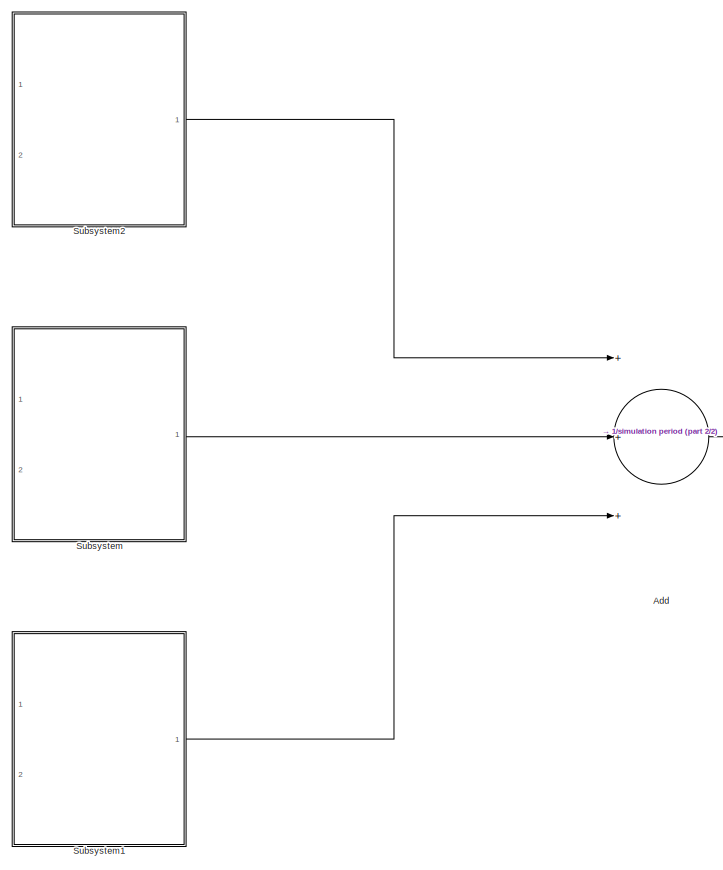
[diagram: root canvas - part 1/2, left side, full height]
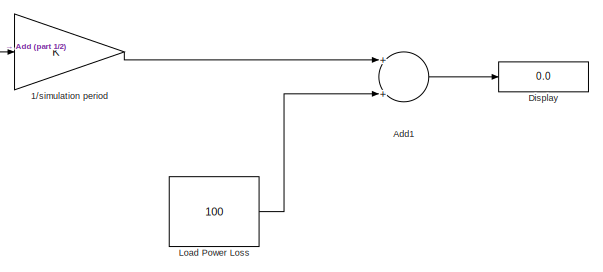
[diagram: root canvas - part 2/2, middle right region]
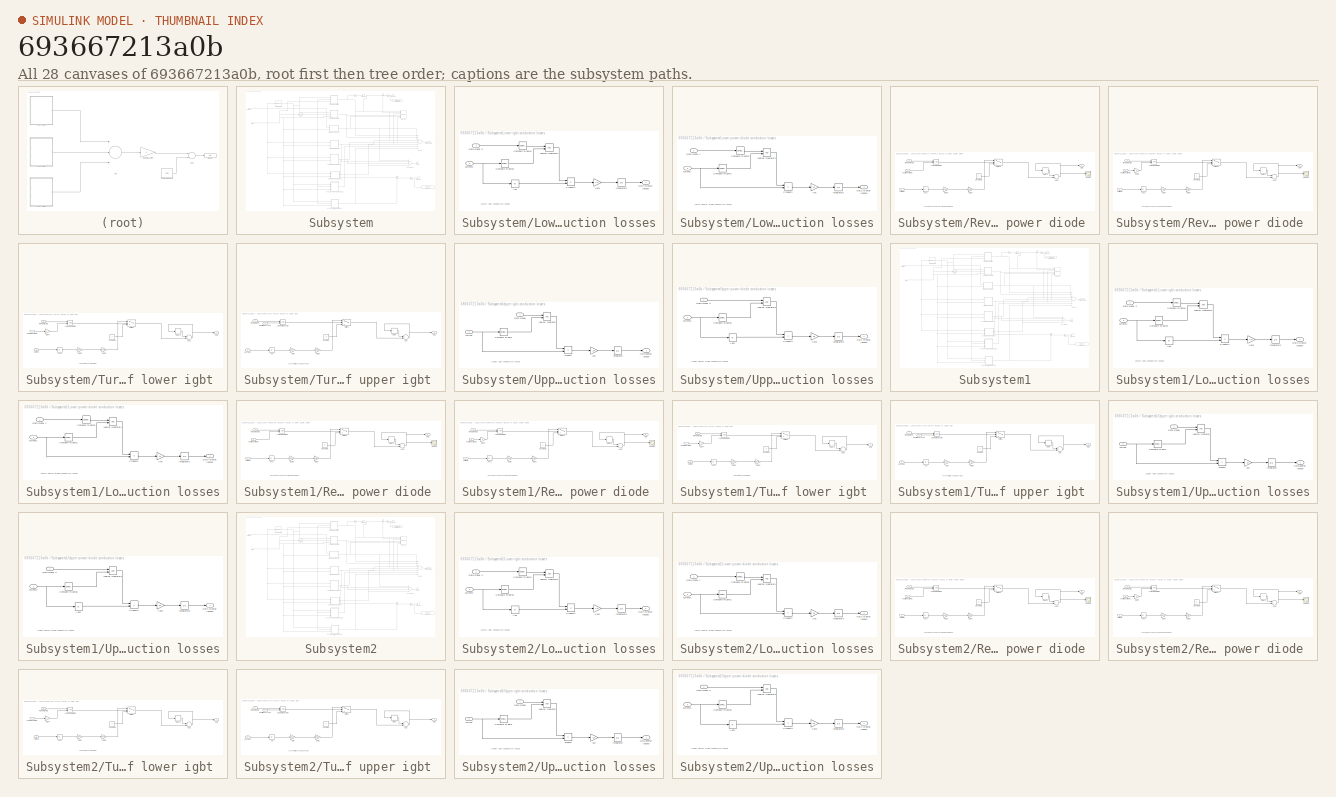
[diagram: thumbnail index - all 28 canvases of the model, root first then tree order]
MODEL slx_693667213a0b
KIND model
CONFIG AbsTol = auto
CONFIG FixedStep = auto
CONFIG MaxStep = auto
CONFIG MinStep = auto
CONFIG RelTol = 1e-3
CONFIG SampleTimeConstraint = Unconstrained
CONFIG Solver = ode45
CONFIG SolverMode = Auto
CONFIG SolverName = ode45
CONFIG StartTime = 0.0
CONFIG StopTime = 10.0
BLOCK [Gain] 1//simulation period
  OutDataTypeStr = Inherit: Inherit via internal rule
  ParamDataTypeStr = Inherit: Inherit via internal rule
  SaturateOnIntegerOverflow = off
BLOCK [Sum] Add
  InputSameDT = off
  Inputs = +++
  OutDataTypeStr = Inherit: Inherit via internal rule
  Ports = [3, 1]
  SaturateOnIntegerOverflow = off
BLOCK [Sum] Add1
  InputSameDT = off
  OutDataTypeStr = Inherit: Inherit via internal rule
  Ports = [2, 1]
  SaturateOnIntegerOverflow = off
BLOCK [Display] Display
  Decimation = 1
  Ports = [1]
BLOCK [Constant] Load Power Loss
  Value = 100
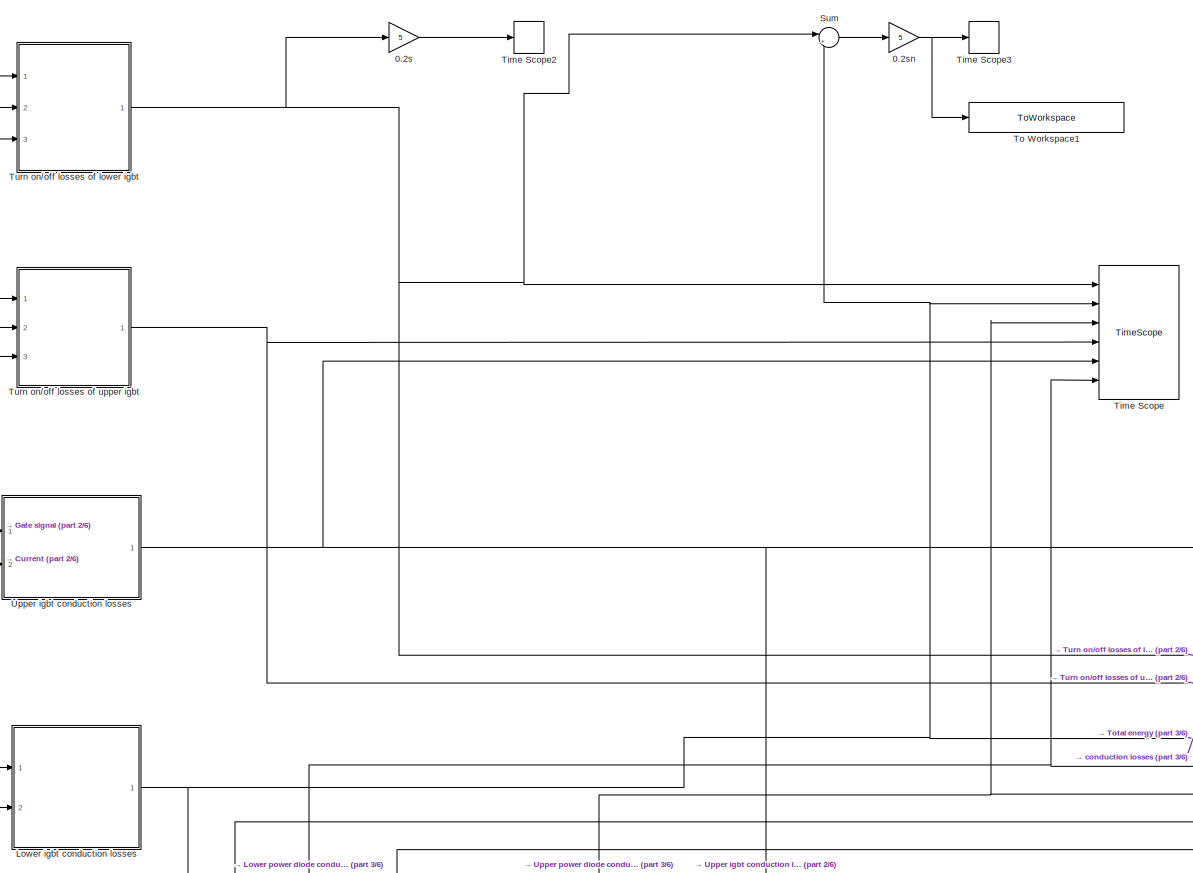
[diagram: Subsystem - part 1/6, top center region]
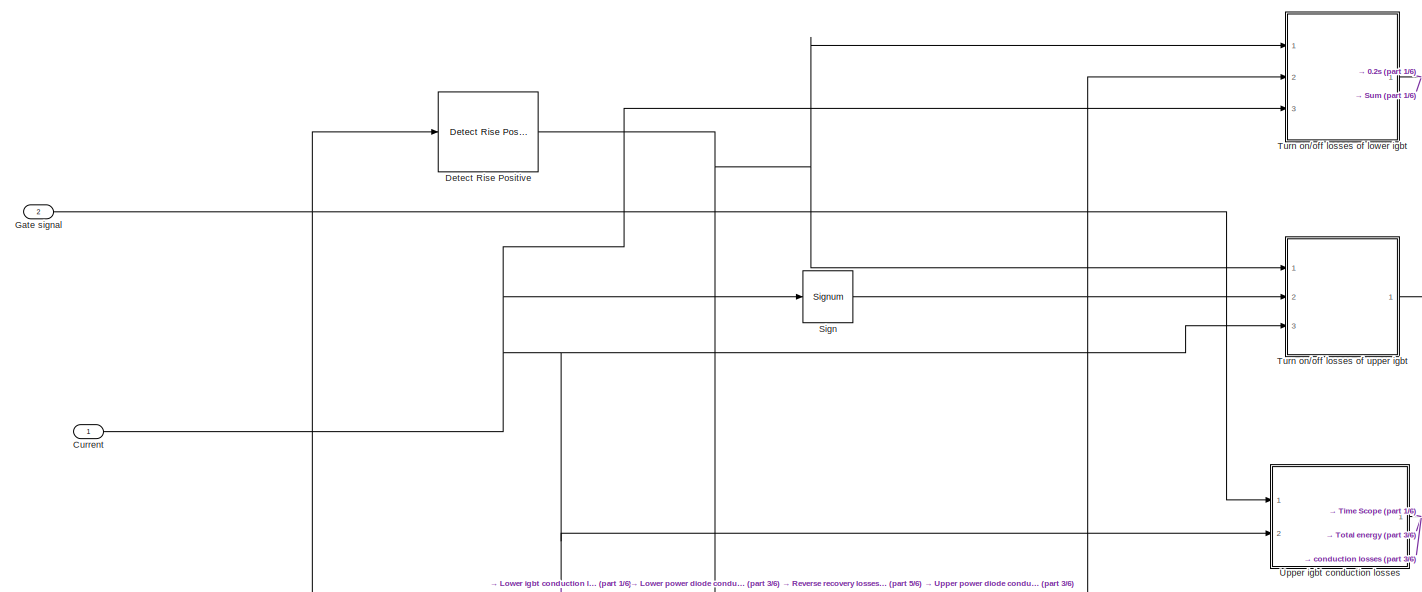
[diagram: Subsystem - part 2/6, top left region]
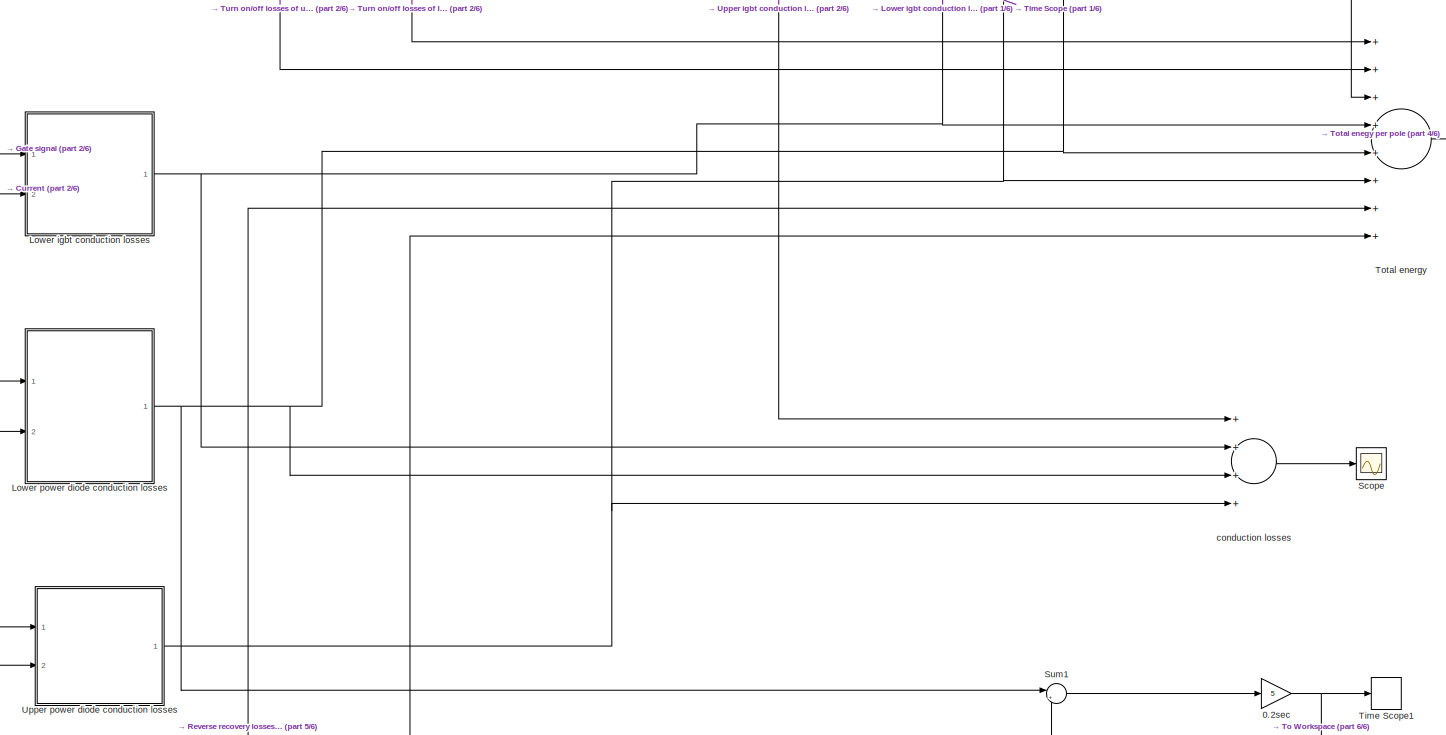
[diagram: Subsystem - part 3/6, middle right region]
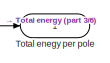
[diagram: Subsystem - part 4/6, middle right region]
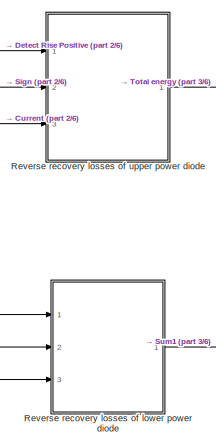
[diagram: Subsystem - part 5/6, bottom center region]
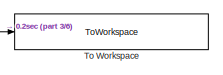
[diagram: Subsystem - part 6/6, bottom right region]
BLOCK [SubSystem] Subsystem
  Ports = [2, 1]
  RequestExecContextInheritance = off
BLOCK [Gain] Subsystem/0.2s
  Gain = 5
  OutDataTypeStr = Inherit: Inherit via internal rule
  ParamDataTypeStr = Inherit: Inherit via internal rule
  SaturateOnIntegerOverflow = off
BLOCK [Gain] Subsystem/0.2sec
  Gain = 5
  OutDataTypeStr = Inherit: Inherit via internal rule
  ParamDataTypeStr = Inherit: Inherit via internal rule
  SaturateOnIntegerOverflow = off
BLOCK [Gain] Subsystem/0.2sn 
  Gain = 5
  OutDataTypeStr = Inherit: Inherit via internal rule
  ParamDataTypeStr = Inherit: Inherit via internal rule
  SaturateOnIntegerOverflow = off
BLOCK [Inport] Subsystem/Current
  IconDisplay = Port number
BLOCK [Reference] Subsystem/Detect Rise Positive  REF=simulink/Logic and Bit
Operations/Detect Rise
Positive
  InputProcessing = Inherited
  OutDataTypeStr = boolean
  Ports = [1, 1]
  SourceBlock = simulink/Logic and Bit\nOperations/Detect Rise\nPositive
  SourceType = Detect Rise Positive
  vinit = 0
BLOCK [Inport] Subsystem/Gate signal 
  IconDisplay = Port number
  Port = 2
BLOCK [SubSystem] Subsystem/Lower igbt conduction losses
  Ports = [2, 1]
  RequestExecContextInheritance = off
BLOCK [Abs] Subsystem/Lower igbt conduction losses/Abs
  SaturateOnIntegerOverflow = off
BLOCK [Reference] Subsystem/Lower igbt conduction losses/Compare To Zero3  REF=simulink/Logic and Bit
Operations/Compare
To Zero
  OutDataTypeStr = boolean
  Ports = [1, 1]
  SourceBlock = simulink/Logic and Bit\nOperations/Compare\nTo Zero
  SourceType = Compare To Zero
  ZeroCross = on
  relop = <
BLOCK [Reference] Subsystem/Lower igbt conduction losses/Compare To Zero4  REF=simulink/Logic and Bit
Operations/Compare
To Zero
  OutDataTypeStr = boolean
  Ports = [1, 1]
  SourceBlock = simulink/Logic and Bit\nOperations/Compare\nTo Zero
  SourceType = Compare To Zero
  ZeroCross = on
  relop = ==
BLOCK [Inport] Subsystem/Lower igbt conduction losses/Gate signal 2
  IconDisplay = Port number
BLOCK [Integrator] Subsystem/Lower igbt conduction losses/Integrator2
  Ports = [1, 1]
BLOCK [Logic] Subsystem/Lower igbt conduction losses/Logical Operator2
  AllPortsSameDT = off
  OutDataTypeStr = boolean
  Ports = [2, 1]
BLOCK [Outport] Subsystem/Lower igbt conduction losses/Out3 (Energy losses)
  IconDisplay = Port number
BLOCK [Product] Subsystem/Lower igbt conduction losses/Product2
  InputSameDT = off
  OutDataTypeStr = Inherit: Inherit via internal rule
  Ports = [2, 1]
  RndMeth = Floor
  SaturateOnIntegerOverflow = off
BLOCK [Gain] Subsystem/Lower igbt conduction losses/Vec1
  Gain = 1.8
  OutDataTypeStr = Inherit: Inherit via internal rule
  ParamDataTypeStr = Inherit: Inherit via internal rule
  SaturateOnIntegerOverflow = off
BLOCK [Inport] Subsystem/Lower igbt conduction losses/current2
  IconDisplay = Port number
  Port = 2
BLOCK [SubSystem] Subsystem/Lower power diode conduction losses
  Ports = [2, 1]
  RequestExecContextInheritance = off
BLOCK [Reference] Subsystem/Lower power diode conduction losses/Compare To Zero1  REF=simulink/Logic and Bit
Operations/Compare
To Zero
  OutDataTypeStr = boolean
  Ports = [1, 1]
  SourceBlock = simulink/Logic and Bit\nOperations/Compare\nTo Zero
  SourceType = Compare To Zero
  ZeroCross = on
  relop = >
BLOCK [Reference] Subsystem/Lower power diode conduction losses/Compare To Zero2  REF=simulink/Logic and Bit
Operations/Compare
To Zero
  OutDataTypeStr = boolean
  Ports = [1, 1]
  SourceBlock = simulink/Logic and Bit\nOperations/Compare\nTo Zero
  SourceType = Compare To Zero
  ZeroCross = on
  relop = ==
BLOCK [Inport] Subsystem/Lower power diode conduction losses/Gate signal 1
  IconDisplay = Port number
BLOCK [Integrator] Subsystem/Lower power diode conduction losses/Integrator1
  Ports = [1, 1]
BLOCK [Logic] Subsystem/Lower power diode conduction losses/Logical Operator1
  AllPortsSameDT = off
  OutDataTypeStr = boolean
  Ports = [2, 1]
BLOCK [Outport] Subsystem/Lower power diode conduction losses/Out2 (Energy losses)
  IconDisplay = Port number
BLOCK [Product] Subsystem/Lower power diode conduction losses/Product1
  InputSameDT = off
  OutDataTypeStr = Inherit: Inherit via internal rule
  Ports = [2, 1]
  RndMeth = Floor
  SaturateOnIntegerOverflow = off
BLOCK [Gain] Subsystem/Lower power diode conduction losses/Vec
  Gain = 1.8
  OutDataTypeStr = Inherit: Inherit via internal rule
  ParamDataTypeStr = Inherit: Inherit via internal rule
  SaturateOnIntegerOverflow = off
BLOCK [Inport] Subsystem/Lower power diode conduction losses/current1
  IconDisplay = Port number
  Port = 2
BLOCK [SubSystem] Subsystem/Reverse recovery losses of lower power diode 
  Ports = [3, 1]
  RequestExecContextInheritance = off
BLOCK [Abs] Subsystem/Reverse recovery losses of lower power diode /Abs2
  SaturateOnIntegerOverflow = off
BLOCK [Sum] Subsystem/Reverse recovery losses of lower power diode /Add2
  InputSameDT = off
  OutDataTypeStr = Inherit: Inherit via internal rule
  Ports = [2, 1]
  SaturateOnIntegerOverflow = off
BLOCK [Constant] Subsystem/Reverse recovery losses of lower power diode /Constant2
  Value = 0
BLOCK [Delay] Subsystem/Reverse recovery losses of lower power diode /Delay2
  DelayLength = 1
  InitialCondition = 0
  InputPortMap = u0
  Ports = [1, 1]
BLOCK [Gain] Subsystem/Reverse recovery losses of lower power diode /Gain5
  Gain = 22*1e-3/300
  OutDataTypeStr = Inherit: Inherit via internal rule
  ParamDataTypeStr = Inherit: Inherit via internal rule
  SaturateOnIntegerOverflow = off
BLOCK [Gain] Subsystem/Reverse recovery losses of lower power diode /Gain6
  Gain = (Vdc)/600
  OutDataTypeStr = Inherit: Inherit via internal rule
  ParamDataTypeStr = Inherit: Inherit via internal rule
  SaturateOnIntegerOverflow = off
BLOCK [Logic] Subsystem/Reverse recovery losses of lower power diode /Logical Operator2
  AllPortsSameDT = off
  OutDataTypeStr = boolean
  Ports = [2, 1]
BLOCK [Outport] Subsystem/Reverse recovery losses of lower power diode /Out3
  IconDisplay = Port number
BLOCK [Inport] Subsystem/Reverse recovery losses of lower power diode /Rise Detector2
  IconDisplay = Port number
BLOCK [Scope] Subsystem/Reverse recovery losses of lower power diode /Scope
  Floating = off
  NumInputPorts = 1
  Ports = [1]
BLOCK [Switch] Subsystem/Reverse recovery losses of lower power diode /Switch2
  Criteria = u2 > Threshold
  InputSameDT = off
  SaturateOnIntegerOverflow = off
BLOCK [Inport] Subsystem/Reverse recovery losses of lower power diode /current2
  IconDisplay = Port number
  Port = 3
BLOCK [Inport] Subsystem/Reverse recovery losses of lower power diode /positive current1
  IconDisplay = Port number
  Port = 2
BLOCK [SubSystem] Subsystem/Reverse recovery losses of upper power diode 
  Ports = [3, 1]
  RequestExecContextInheritance = off
BLOCK [Abs] Subsystem/Reverse recovery losses of upper power diode /Abs3
  SaturateOnIntegerOverflow = off
BLOCK [Sum] Subsystem/Reverse recovery losses of upper power diode /Add3
  InputSameDT = off
  OutDataTypeStr = Inherit: Inherit via internal rule
  Ports = [2, 1]
  SaturateOnIntegerOverflow = off
BLOCK [Constant] Subsystem/Reverse recovery losses of upper power diode /Constant3
  Value = 0
BLOCK [Delay] Subsystem/Reverse recovery losses of upper power diode /Delay3
  DelayLength = 1
  InitialCondition = 0
  InputPortMap = u0
  Ports = [1, 1]
BLOCK [Gain] Subsystem/Reverse recovery losses of upper power diode /Gain7
  Gain = 22*1e-3/300
  OutDataTypeStr = Inherit: Inherit via internal rule
  ParamDataTypeStr = Inherit: Inherit via internal rule
  SaturateOnIntegerOverflow = off
BLOCK [Gain] Subsystem/Reverse recovery losses of upper power diode /Gain8
  Gain = (Vdc)/600
  OutDataTypeStr = Inherit: Inherit via internal rule
  ParamDataTypeStr = Inherit: Inherit via internal rule
  SaturateOnIntegerOverflow = off
BLOCK [Gain] Subsystem/Reverse recovery losses of upper power diode /Gain9
  Gain = -1
  OutDataTypeStr = Inherit: Inherit via internal rule
  ParamDataTypeStr = Inherit: Inherit via internal rule
  SaturateOnIntegerOverflow = off
BLOCK [Logic] Subsystem/Reverse recovery losses of upper power diode /Logical Operator3
  AllPortsSameDT = off
  OutDataTypeStr = boolean
  Ports = [2, 1]
BLOCK [Outport] Subsystem/Reverse recovery losses of upper power diode /Out4
  IconDisplay = Port number
BLOCK [Inport] Subsystem/Reverse recovery losses of upper power diode /Rise Detector3
  IconDisplay = Port number
BLOCK [Scope] Subsystem/Reverse recovery losses of upper power diode /Scope1
  Floating = off
  NumInputPorts = 1
  Ports = [1]
  SaveName = ScopeData1
BLOCK [Switch] Subsystem/Reverse recovery losses of upper power diode /Switch3
  Criteria = u2 > Threshold
  InputSameDT = off
  SaturateOnIntegerOverflow = off
BLOCK [Inport] Subsystem/Reverse recovery losses of upper power diode /current3
  IconDisplay = Port number
  Port = 3
BLOCK [Inport] Subsystem/Reverse recovery losses of upper power diode /positive current2
  IconDisplay = Port number
  Port = 2
BLOCK [Scope] Subsystem/Scope
  Floating = off
  NumInputPorts = 1
  Ports = [1]
  SaveName = ScopeData3
BLOCK [Signum] Subsystem/Sign
BLOCK [Sum] Subsystem/Sum
  IconShape = round
  InputSameDT = off
  Inputs = |++
  OutDataTypeStr = Inherit: Inherit via internal rule
  Ports = [2, 1]
  SaturateOnIntegerOverflow = off
BLOCK [Sum] Subsystem/Sum1
  IconShape = round
  InputSameDT = off
  Inputs = |++
  OutDataTypeStr = Inherit: Inherit via internal rule
  Ports = [2, 1]
  SaturateOnIntegerOverflow = off
BLOCK [TimeScope] Subsystem/Time Scope
  DefaultConfigurationName = spbscopes.TimeScopeBlockCfg
  NumInputPorts = 6
  Ports = [6]
  ScopeSpecificationString = spbscopes.TimeScopeBlockCfg('CurrentConfiguration', extmgr.ConfigurationSet(extmgr.Configuration('Core','General UI',true,'ShowNewAction',false,'ShowLoadConfigSet',false,'ShowSaveConfigSet',false,'DisplayFullSourceName',false,'MessageLogAutoOpenMode','for warn/fail messages','MessageLogDialogPosition',[20 520 450 500],'ShowMainToolbar',true,'ShowPlaybackToolbar',true,'ShowStatusbar',true,'ShowFull...<+1482ch>  <repeated x12 — deduplicated; at blocks: Time Scope, Time Scope1, Time Scope2, Time Scope3>
  UserDataPersistent = on
BLOCK [TimeScope] Subsystem/Time Scope1
  DefaultConfigurationName = spbscopes.TimeScopeBlockCfg
  NumInputPorts = 1
  Ports = [1]
  UserDataPersistent = on
BLOCK [TimeScope] Subsystem/Time Scope2
  DefaultConfigurationName = spbscopes.TimeScopeBlockCfg
  NumInputPorts = 1
  Ports = [1]
  UserDataPersistent = on
BLOCK [TimeScope] Subsystem/Time Scope3
  DefaultConfigurationName = spbscopes.TimeScopeBlockCfg
  NumInputPorts = 1
  Ports = [1]
  UserDataPersistent = on
BLOCK [ToWorkspace] Subsystem/To Workspace
  FixptAsFi = on
  MaxDataPoints = inf
  Ports = [1]
  SampleTime = -1
  Save2DSignal = 3-D array (concatenate along third dimension)
  SaveFormat = Timeseries
  VariableName = lower_diode_losses
BLOCK [ToWorkspace] Subsystem/To Workspace1
  FixptAsFi = on
  MaxDataPoints = inf
  Ports = [1]
  SampleTime = -1
  Save2DSignal = 3-D array (concatenate along third dimension)
  SaveFormat = Timeseries
  VariableName = lower_igbt_losses
BLOCK [Outport] Subsystem/Total enegy per pole
  IconDisplay = Port number
BLOCK [Sum] Subsystem/Total energy 
  InputSameDT = off
  Inputs = ++++++++
  OutDataTypeStr = Inherit: Inherit via internal rule
  Ports = [8, 1]
  SaturateOnIntegerOverflow = off
BLOCK [SubSystem] Subsystem/Turn on//off losses of lower igbt 
  Ports = [3, 1]
  RequestExecContextInheritance = off
BLOCK [Abs] Subsystem/Turn on//off losses of lower igbt /Abs1
  SaturateOnIntegerOverflow = off
BLOCK [Sum] Subsystem/Turn on//off losses of lower igbt /Add1
  InputSameDT = off
  OutDataTypeStr = Inherit: Inherit via internal rule
  Ports = [2, 1]
  SaturateOnIntegerOverflow = off
BLOCK [Constant] Subsystem/Turn on//off losses of lower igbt /Constant1
  Value = 0
BLOCK [Delay] Subsystem/Turn on//off losses of lower igbt /Delay1
  DelayLength = 1
  InitialCondition = 0
  InputPortMap = u0
  Ports = [1, 1]
BLOCK [Gain] Subsystem/Turn on//off losses of lower igbt /Gain2
  Gain = 73*1e-3/300
  OutDataTypeStr = Inherit: Inherit via internal rule
  ParamDataTypeStr = Inherit: Inherit via internal rule
  SaturateOnIntegerOverflow = off
BLOCK [Gain] Subsystem/Turn on//off losses of lower igbt /Gain3
  Gain = (Vdc)/600
  OutDataTypeStr = Inherit: Inherit via internal rule
  ParamDataTypeStr = Inherit: Inherit via internal rule
  SaturateOnIntegerOverflow = off
BLOCK [Gain] Subsystem/Turn on//off losses of lower igbt /Gain4
  Gain = -1
  OutDataTypeStr = Inherit: Inherit via internal rule
  ParamDataTypeStr = Inherit: Inherit via internal rule
  SaturateOnIntegerOverflow = off
BLOCK [Logic] Subsystem/Turn on//off losses of lower igbt /Logical Operator1
  AllPortsSameDT = off
  OutDataTypeStr = boolean
  Ports = [2, 1]
BLOCK [Outport] Subsystem/Turn on//off losses of lower igbt /Out2
  IconDisplay = Port number
BLOCK [Inport] Subsystem/Turn on//off losses of lower igbt /Rise Detector1
  IconDisplay = Port number
BLOCK [Switch] Subsystem/Turn on//off losses of lower igbt /Switch1
  Criteria = u2 > Threshold
  InputSameDT = off
  SaturateOnIntegerOverflow = off
BLOCK [Inport] Subsystem/Turn on//off losses of lower igbt /current1
  IconDisplay = Port number
  Port = 3
BLOCK [Inport] Subsystem/Turn on//off losses of lower igbt /negative current
  IconDisplay = Port number
  Port = 2
BLOCK [SubSystem] Subsystem/Turn on//off losses of upper igbt 
  Ports = [3, 1]
  RequestExecContextInheritance = off
BLOCK [Abs] Subsystem/Turn on//off losses of upper igbt /Abs
  SaturateOnIntegerOverflow = off
BLOCK [Sum] Subsystem/Turn on//off losses of upper igbt /Add
  InputSameDT = off
  OutDataTypeStr = Inherit: Inherit via internal rule
  Ports = [2, 1]
  SaturateOnIntegerOverflow = off
BLOCK [Constant] Subsystem/Turn on//off losses of upper igbt /Constant
  Value = 0
BLOCK [Delay] Subsystem/Turn on//off losses of upper igbt /Delay
  DelayLength = 1
  InitialCondition = 0
  InputPortMap = u0
  Ports = [1, 1]
BLOCK [Gain] Subsystem/Turn on//off losses of upper igbt /Gain
  Gain = 73*1e-3/300
  OutDataTypeStr = Inherit: Inherit via internal rule
  ParamDataTypeStr = Inherit: Inherit via internal rule
  SaturateOnIntegerOverflow = off
BLOCK [Gain] Subsystem/Turn on//off losses of upper igbt /Gain1
  Gain = (Vdc)/600
  OutDataTypeStr = Inherit: Inherit via internal rule
  ParamDataTypeStr = Inherit: Inherit via internal rule
  SaturateOnIntegerOverflow = off
BLOCK [Logic] Subsystem/Turn on//off losses of upper igbt /Logical Operator
  AllPortsSameDT = off
  OutDataTypeStr = boolean
  Ports = [2, 1]
BLOCK [Outport] Subsystem/Turn on//off losses of upper igbt /Out1
  IconDisplay = Port number
BLOCK [Inport] Subsystem/Turn on//off losses of upper igbt /Rise Detector
  IconDisplay = Port number
BLOCK [Switch] Subsystem/Turn on//off losses of upper igbt /Switch
  Criteria = u2 > Threshold
  InputSameDT = off
  SaturateOnIntegerOverflow = off
BLOCK [Inport] Subsystem/Turn on//off losses of upper igbt /current
  IconDisplay = Port number
  Port = 3
BLOCK [Inport] Subsystem/Turn on//off losses of upper igbt /positive current
  IconDisplay = Port number
  Port = 2
BLOCK [SubSystem] Subsystem/Upper igbt conduction losses
  Ports = [2, 1]
  RequestExecContextInheritance = off
BLOCK [Reference] Subsystem/Upper igbt conduction losses/Compare To Zero  REF=simulink/Logic and Bit
Operations/Compare
To Zero
  OutDataTypeStr = boolean
  Ports = [1, 1]
  SourceBlock = simulink/Logic and Bit\nOperations/Compare\nTo Zero
  SourceType = Compare To Zero
  ZeroCross = on
  relop = >
BLOCK [Inport] Subsystem/Upper igbt conduction losses/Gate signal 
  IconDisplay = Port number
BLOCK [Integrator] Subsystem/Upper igbt conduction losses/Integrator
  Ports = [1, 1]
BLOCK [Logic] Subsystem/Upper igbt conduction losses/Logical Operator
  AllPortsSameDT = off
  OutDataTypeStr = boolean
  Ports = [2, 1]
BLOCK [Outport] Subsystem/Upper igbt conduction losses/Out1(Energy losses)
  IconDisplay = Port number
BLOCK [Product] Subsystem/Upper igbt conduction losses/Product
  InputSameDT = off
  OutDataTypeStr = Inherit: Inherit via internal rule
  Ports = [2, 1]
  RndMeth = Floor
  SaturateOnIntegerOverflow = off
BLOCK [Gain] Subsystem/Upper igbt conduction losses/Vce
  Gain = 1.8
  OutDataTypeStr = Inherit: Inherit via internal rule
  ParamDataTypeStr = Inherit: Inherit via internal rule
  SaturateOnIntegerOverflow = off
BLOCK [Inport] Subsystem/Upper igbt conduction losses/current
  IconDisplay = Port number
  Port = 2
BLOCK [SubSystem] Subsystem/Upper power diode conduction losses
  Ports = [2, 1]
  RequestExecContextInheritance = off
BLOCK [Abs] Subsystem/Upper power diode conduction losses/Abs1
  SaturateOnIntegerOverflow = off
BLOCK [Reference] Subsystem/Upper power diode conduction losses/Compare To Zero5  REF=simulink/Logic and Bit
Operations/Compare
To Zero
  OutDataTypeStr = boolean
  Ports = [1, 1]
  SourceBlock = simulink/Logic and Bit\nOperations/Compare\nTo Zero
  SourceType = Compare To Zero
  ZeroCross = on
  relop = <
BLOCK [Inport] Subsystem/Upper power diode conduction losses/Gate signal 3
  IconDisplay = Port number
BLOCK [Integrator] Subsystem/Upper power diode conduction losses/Integrator3
  Ports = [1, 1]
BLOCK [Logic] Subsystem/Upper power diode conduction losses/Logical Operator3
  AllPortsSameDT = off
  OutDataTypeStr = boolean
  Ports = [2, 1]
BLOCK [Outport] Subsystem/Upper power diode conduction losses/Out4 (Energy losses)
  IconDisplay = Port number
BLOCK [Product] Subsystem/Upper power diode conduction losses/Product3
  InputSameDT = off
  OutDataTypeStr = Inherit: Inherit via internal rule
  Ports = [2, 1]
  RndMeth = Floor
  SaturateOnIntegerOverflow = off
BLOCK [Gain] Subsystem/Upper power diode conduction losses/Vec2
  Gain = 1.8
  OutDataTypeStr = Inherit: Inherit via internal rule
  ParamDataTypeStr = Inherit: Inherit via internal rule
  SaturateOnIntegerOverflow = off
BLOCK [Inport] Subsystem/Upper power diode conduction losses/current3
  IconDisplay = Port number
  Port = 2
BLOCK [Sum] Subsystem/conduction losses
  InputSameDT = off
  Inputs = ++++
  OutDataTypeStr = Inherit: Inherit via internal rule
  Ports = [4, 1]
  SaturateOnIntegerOverflow = off
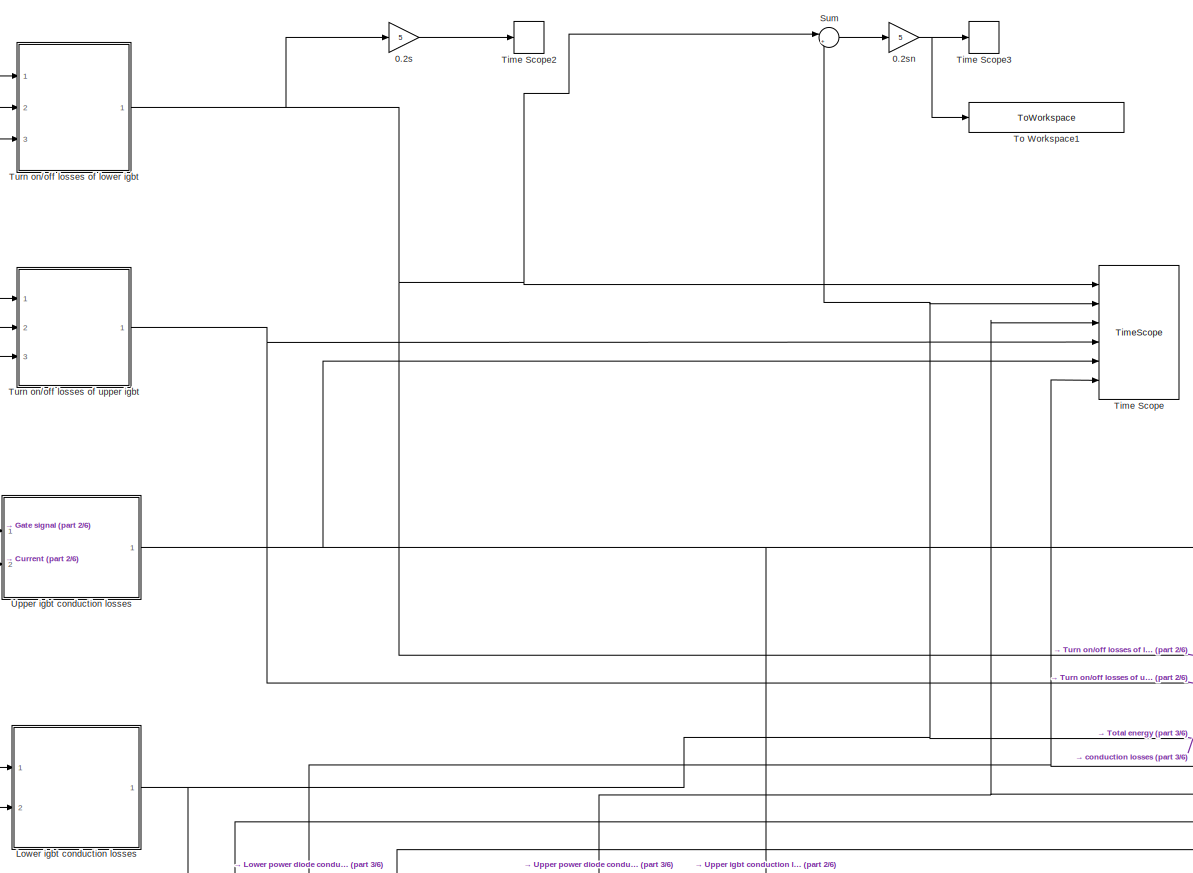
[diagram: Subsystem1 - part 1/6, top center region]
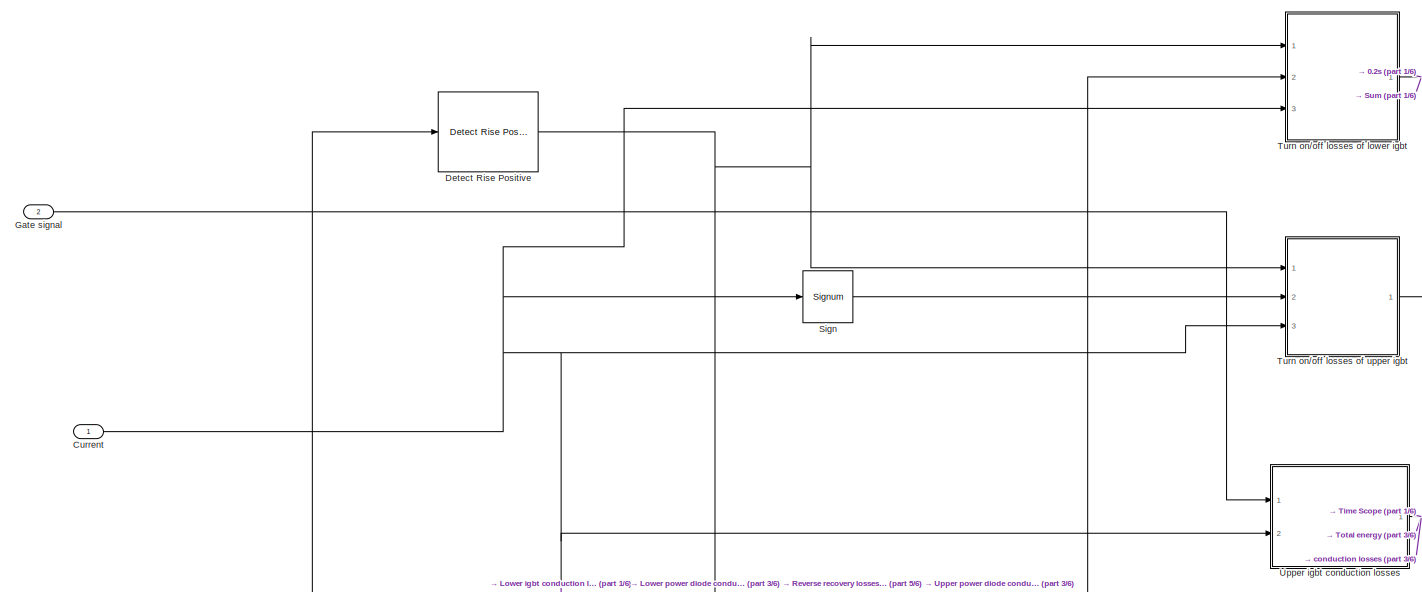
[diagram: Subsystem1 - part 2/6, top left region]
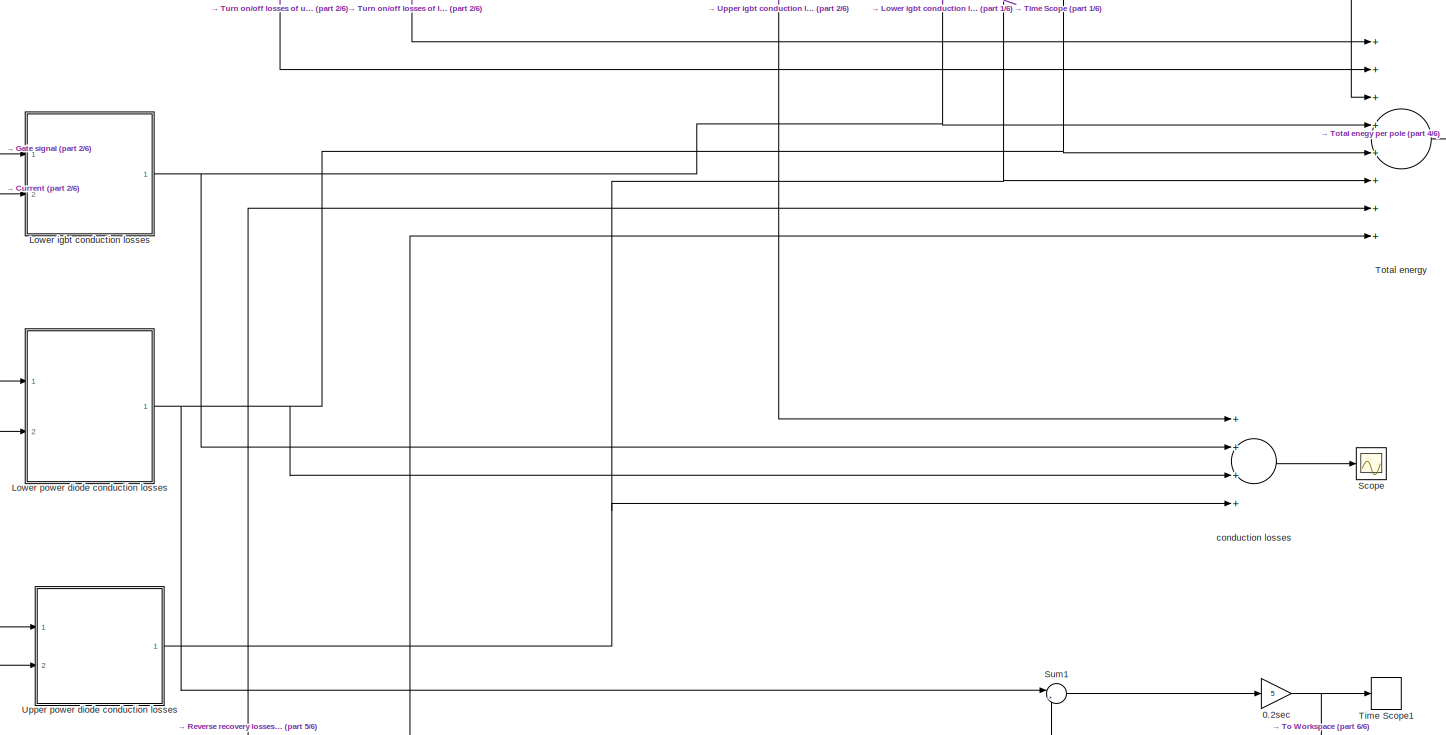
[diagram: Subsystem1 - part 3/6, middle right region]
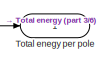
[diagram: Subsystem1 - part 4/6, middle right region]
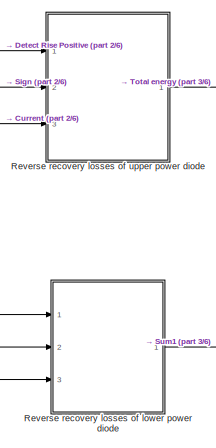
[diagram: Subsystem1 - part 5/6, bottom center region]
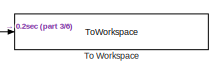
[diagram: Subsystem1 - part 6/6, bottom right region]
BLOCK [SubSystem] Subsystem1
  Ports = [2, 1]
  RequestExecContextInheritance = off
BLOCK [Gain] Subsystem1/0.2s
  Gain = 5
  OutDataTypeStr = Inherit: Inherit via internal rule
  ParamDataTypeStr = Inherit: Inherit via internal rule
  SaturateOnIntegerOverflow = off
BLOCK [Gain] Subsystem1/0.2sec
  Gain = 5
  OutDataTypeStr = Inherit: Inherit via internal rule
  ParamDataTypeStr = Inherit: Inherit via internal rule
  SaturateOnIntegerOverflow = off
BLOCK [Gain] Subsystem1/0.2sn 
  Gain = 5
  OutDataTypeStr = Inherit: Inherit via internal rule
  ParamDataTypeStr = Inherit: Inherit via internal rule
  SaturateOnIntegerOverflow = off
BLOCK [Inport] Subsystem1/Current
  IconDisplay = Port number
BLOCK [Reference] Subsystem1/Detect Rise Positive  REF=simulink/Logic and Bit
Operations/Detect Rise
Positive
  InputProcessing = Inherited
  OutDataTypeStr = boolean
  Ports = [1, 1]
  SourceBlock = simulink/Logic and Bit\nOperations/Detect Rise\nPositive
  SourceType = Detect Rise Positive
  vinit = 0
BLOCK [Inport] Subsystem1/Gate signal 
  IconDisplay = Port number
  Port = 2
BLOCK [SubSystem] Subsystem1/Lower igbt conduction losses
  Ports = [2, 1]
  RequestExecContextInheritance = off
BLOCK [Abs] Subsystem1/Lower igbt conduction losses/Abs
  SaturateOnIntegerOverflow = off
BLOCK [Reference] Subsystem1/Lower igbt conduction losses/Compare To Zero3  REF=simulink/Logic and Bit
Operations/Compare
To Zero
  OutDataTypeStr = boolean
  Ports = [1, 1]
  SourceBlock = simulink/Logic and Bit\nOperations/Compare\nTo Zero
  SourceType = Compare To Zero
  ZeroCross = on
  relop = <
BLOCK [Reference] Subsystem1/Lower igbt conduction losses/Compare To Zero4  REF=simulink/Logic and Bit
Operations/Compare
To Zero
  OutDataTypeStr = boolean
  Ports = [1, 1]
  SourceBlock = simulink/Logic and Bit\nOperations/Compare\nTo Zero
  SourceType = Compare To Zero
  ZeroCross = on
  relop = ==
BLOCK [Inport] Subsystem1/Lower igbt conduction losses/Gate signal 2
  IconDisplay = Port number
BLOCK [Integrator] Subsystem1/Lower igbt conduction losses/Integrator2
  Ports = [1, 1]
BLOCK [Logic] Subsystem1/Lower igbt conduction losses/Logical Operator2
  AllPortsSameDT = off
  OutDataTypeStr = boolean
  Ports = [2, 1]
BLOCK [Outport] Subsystem1/Lower igbt conduction losses/Out3 (Energy losses)
  IconDisplay = Port number
BLOCK [Product] Subsystem1/Lower igbt conduction losses/Product2
  InputSameDT = off
  OutDataTypeStr = Inherit: Inherit via internal rule
  Ports = [2, 1]
  RndMeth = Floor
  SaturateOnIntegerOverflow = off
BLOCK [Gain] Subsystem1/Lower igbt conduction losses/Vec1
  Gain = 1.8
  OutDataTypeStr = Inherit: Inherit via internal rule
  ParamDataTypeStr = Inherit: Inherit via internal rule
  SaturateOnIntegerOverflow = off
BLOCK [Inport] Subsystem1/Lower igbt conduction losses/current2
  IconDisplay = Port number
  Port = 2
BLOCK [SubSystem] Subsystem1/Lower power diode conduction losses
  Ports = [2, 1]
  RequestExecContextInheritance = off
BLOCK [Reference] Subsystem1/Lower power diode conduction losses/Compare To Zero1  REF=simulink/Logic and Bit
Operations/Compare
To Zero
  OutDataTypeStr = boolean
  Ports = [1, 1]
  SourceBlock = simulink/Logic and Bit\nOperations/Compare\nTo Zero
  SourceType = Compare To Zero
  ZeroCross = on
  relop = >
BLOCK [Reference] Subsystem1/Lower power diode conduction losses/Compare To Zero2  REF=simulink/Logic and Bit
Operations/Compare
To Zero
  OutDataTypeStr = boolean
  Ports = [1, 1]
  SourceBlock = simulink/Logic and Bit\nOperations/Compare\nTo Zero
  SourceType = Compare To Zero
  ZeroCross = on
  relop = ==
BLOCK [Inport] Subsystem1/Lower power diode conduction losses/Gate signal 1
  IconDisplay = Port number
BLOCK [Integrator] Subsystem1/Lower power diode conduction losses/Integrator1
  Ports = [1, 1]
BLOCK [Logic] Subsystem1/Lower power diode conduction losses/Logical Operator1
  AllPortsSameDT = off
  OutDataTypeStr = boolean
  Ports = [2, 1]
BLOCK [Outport] Subsystem1/Lower power diode conduction losses/Out2 (Energy losses)
  IconDisplay = Port number
BLOCK [Product] Subsystem1/Lower power diode conduction losses/Product1
  InputSameDT = off
  OutDataTypeStr = Inherit: Inherit via internal rule
  Ports = [2, 1]
  RndMeth = Floor
  SaturateOnIntegerOverflow = off
BLOCK [Gain] Subsystem1/Lower power diode conduction losses/Vec
  Gain = 1.8
  OutDataTypeStr = Inherit: Inherit via internal rule
  ParamDataTypeStr = Inherit: Inherit via internal rule
  SaturateOnIntegerOverflow = off
BLOCK [Inport] Subsystem1/Lower power diode conduction losses/current1
  IconDisplay = Port number
  Port = 2
BLOCK [SubSystem] Subsystem1/Reverse recovery losses of lower power diode 
  Ports = [3, 1]
  RequestExecContextInheritance = off
BLOCK [Abs] Subsystem1/Reverse recovery losses of lower power diode /Abs2
  SaturateOnIntegerOverflow = off
BLOCK [Sum] Subsystem1/Reverse recovery losses of lower power diode /Add2
  InputSameDT = off
  OutDataTypeStr = Inherit: Inherit via internal rule
  Ports = [2, 1]
  SaturateOnIntegerOverflow = off
BLOCK [Constant] Subsystem1/Reverse recovery losses of lower power diode /Constant2
  Value = 0
BLOCK [Delay] Subsystem1/Reverse recovery losses of lower power diode /Delay2
  DelayLength = 1
  InitialCondition = 0
  InputPortMap = u0
  Ports = [1, 1]
BLOCK [Gain] Subsystem1/Reverse recovery losses of lower power diode /Gain5
  Gain = 22*1e-3/300
  OutDataTypeStr = Inherit: Inherit via internal rule
  ParamDataTypeStr = Inherit: Inherit via internal rule
  SaturateOnIntegerOverflow = off
BLOCK [Gain] Subsystem1/Reverse recovery losses of lower power diode /Gain6
  Gain = (Vdc)/600
  OutDataTypeStr = Inherit: Inherit via internal rule
  ParamDataTypeStr = Inherit: Inherit via internal rule
  SaturateOnIntegerOverflow = off
BLOCK [Logic] Subsystem1/Reverse recovery losses of lower power diode /Logical Operator2
  AllPortsSameDT = off
  OutDataTypeStr = boolean
  Ports = [2, 1]
BLOCK [Outport] Subsystem1/Reverse recovery losses of lower power diode /Out3
  IconDisplay = Port number
BLOCK [Inport] Subsystem1/Reverse recovery losses of lower power diode /Rise Detector2
  IconDisplay = Port number
BLOCK [Scope] Subsystem1/Reverse recovery losses of lower power diode /Scope
  Floating = off
  NumInputPorts = 1
  Ports = [1]
BLOCK [Switch] Subsystem1/Reverse recovery losses of lower power diode /Switch2
  Criteria = u2 > Threshold
  InputSameDT = off
  SaturateOnIntegerOverflow = off
BLOCK [Inport] Subsystem1/Reverse recovery losses of lower power diode /current2
  IconDisplay = Port number
  Port = 3
BLOCK [Inport] Subsystem1/Reverse recovery losses of lower power diode /positive current1
  IconDisplay = Port number
  Port = 2
BLOCK [SubSystem] Subsystem1/Reverse recovery losses of upper power diode 
  Ports = [3, 1]
  RequestExecContextInheritance = off
BLOCK [Abs] Subsystem1/Reverse recovery losses of upper power diode /Abs3
  SaturateOnIntegerOverflow = off
BLOCK [Sum] Subsystem1/Reverse recovery losses of upper power diode /Add3
  InputSameDT = off
  OutDataTypeStr = Inherit: Inherit via internal rule
  Ports = [2, 1]
  SaturateOnIntegerOverflow = off
BLOCK [Constant] Subsystem1/Reverse recovery losses of upper power diode /Constant3
  Value = 0
BLOCK [Delay] Subsystem1/Reverse recovery losses of upper power diode /Delay3
  DelayLength = 1
  InitialCondition = 0
  InputPortMap = u0
  Ports = [1, 1]
BLOCK [Gain] Subsystem1/Reverse recovery losses of upper power diode /Gain7
  Gain = 22*1e-3/300
  OutDataTypeStr = Inherit: Inherit via internal rule
  ParamDataTypeStr = Inherit: Inherit via internal rule
  SaturateOnIntegerOverflow = off
BLOCK [Gain] Subsystem1/Reverse recovery losses of upper power diode /Gain8
  Gain = (Vdc)/600
  OutDataTypeStr = Inherit: Inherit via internal rule
  ParamDataTypeStr = Inherit: Inherit via internal rule
  SaturateOnIntegerOverflow = off
BLOCK [Gain] Subsystem1/Reverse recovery losses of upper power diode /Gain9
  Gain = -1
  OutDataTypeStr = Inherit: Inherit via internal rule
  ParamDataTypeStr = Inherit: Inherit via internal rule
  SaturateOnIntegerOverflow = off
BLOCK [Logic] Subsystem1/Reverse recovery losses of upper power diode /Logical Operator3
  AllPortsSameDT = off
  OutDataTypeStr = boolean
  Ports = [2, 1]
BLOCK [Outport] Subsystem1/Reverse recovery losses of upper power diode /Out4
  IconDisplay = Port number
BLOCK [Inport] Subsystem1/Reverse recovery losses of upper power diode /Rise Detector3
  IconDisplay = Port number
BLOCK [Scope] Subsystem1/Reverse recovery losses of upper power diode /Scope1
  Floating = off
  NumInputPorts = 1
  Ports = [1]
  SaveName = ScopeData1
BLOCK [Switch] Subsystem1/Reverse recovery losses of upper power diode /Switch3
  Criteria = u2 > Threshold
  InputSameDT = off
  SaturateOnIntegerOverflow = off
BLOCK [Inport] Subsystem1/Reverse recovery losses of upper power diode /current3
  IconDisplay = Port number
  Port = 3
BLOCK [Inport] Subsystem1/Reverse recovery losses of upper power diode /positive current2
  IconDisplay = Port number
  Port = 2
BLOCK [Scope] Subsystem1/Scope
  Floating = off
  NumInputPorts = 1
  Ports = [1]
  SaveName = ScopeData3
BLOCK [Signum] Subsystem1/Sign
BLOCK [Sum] Subsystem1/Sum
  IconShape = round
  InputSameDT = off
  Inputs = |++
  OutDataTypeStr = Inherit: Inherit via internal rule
  Ports = [2, 1]
  SaturateOnIntegerOverflow = off
BLOCK [Sum] Subsystem1/Sum1
  IconShape = round
  InputSameDT = off
  Inputs = |++
  OutDataTypeStr = Inherit: Inherit via internal rule
  Ports = [2, 1]
  SaturateOnIntegerOverflow = off
BLOCK [TimeScope] Subsystem1/Time Scope
  DefaultConfigurationName = spbscopes.TimeScopeBlockCfg
  NumInputPorts = 6
  Ports = [6]
  UserDataPersistent = on
BLOCK [TimeScope] Subsystem1/Time Scope1
  DefaultConfigurationName = spbscopes.TimeScopeBlockCfg
  NumInputPorts = 1
  Ports = [1]
  UserDataPersistent = on
BLOCK [TimeScope] Subsystem1/Time Scope2
  DefaultConfigurationName = spbscopes.TimeScopeBlockCfg
  NumInputPorts = 1
  Ports = [1]
  UserDataPersistent = on
BLOCK [TimeScope] Subsystem1/Time Scope3
  DefaultConfigurationName = spbscopes.TimeScopeBlockCfg
  NumInputPorts = 1
  Ports = [1]
  UserDataPersistent = on
BLOCK [ToWorkspace] Subsystem1/To Workspace
  FixptAsFi = on
  MaxDataPoints = inf
  Ports = [1]
  SampleTime = -1
  Save2DSignal = 3-D array (concatenate along third dimension)
  SaveFormat = Timeseries
  VariableName = lower_diode_losses
BLOCK [ToWorkspace] Subsystem1/To Workspace1
  FixptAsFi = on
  MaxDataPoints = inf
  Ports = [1]
  SampleTime = -1
  Save2DSignal = 3-D array (concatenate along third dimension)
  SaveFormat = Timeseries
  VariableName = lower_igbt_losses
BLOCK [Outport] Subsystem1/Total enegy per pole
  IconDisplay = Port number
BLOCK [Sum] Subsystem1/Total energy 
  InputSameDT = off
  Inputs = ++++++++
  OutDataTypeStr = Inherit: Inherit via internal rule
  Ports = [8, 1]
  SaturateOnIntegerOverflow = off
BLOCK [SubSystem] Subsystem1/Turn on//off losses of lower igbt 
  Ports = [3, 1]
  RequestExecContextInheritance = off
BLOCK [Abs] Subsystem1/Turn on//off losses of lower igbt /Abs1
  SaturateOnIntegerOverflow = off
BLOCK [Sum] Subsystem1/Turn on//off losses of lower igbt /Add1
  InputSameDT = off
  OutDataTypeStr = Inherit: Inherit via internal rule
  Ports = [2, 1]
  SaturateOnIntegerOverflow = off
BLOCK [Constant] Subsystem1/Turn on//off losses of lower igbt /Constant1
  Value = 0
BLOCK [Delay] Subsystem1/Turn on//off losses of lower igbt /Delay1
  DelayLength = 1
  InitialCondition = 0
  InputPortMap = u0
  Ports = [1, 1]
BLOCK [Gain] Subsystem1/Turn on//off losses of lower igbt /Gain2
  Gain = 73*1e-3/300
  OutDataTypeStr = Inherit: Inherit via internal rule
  ParamDataTypeStr = Inherit: Inherit via internal rule
  SaturateOnIntegerOverflow = off
BLOCK [Gain] Subsystem1/Turn on//off losses of lower igbt /Gain3
  Gain = (Vdc)/600
  OutDataTypeStr = Inherit: Inherit via internal rule
  ParamDataTypeStr = Inherit: Inherit via internal rule
  SaturateOnIntegerOverflow = off
BLOCK [Gain] Subsystem1/Turn on//off losses of lower igbt /Gain4
  Gain = -1
  OutDataTypeStr = Inherit: Inherit via internal rule
  ParamDataTypeStr = Inherit: Inherit via internal rule
  SaturateOnIntegerOverflow = off
BLOCK [Logic] Subsystem1/Turn on//off losses of lower igbt /Logical Operator1
  AllPortsSameDT = off
  OutDataTypeStr = boolean
  Ports = [2, 1]
BLOCK [Outport] Subsystem1/Turn on//off losses of lower igbt /Out2
  IconDisplay = Port number
BLOCK [Inport] Subsystem1/Turn on//off losses of lower igbt /Rise Detector1
  IconDisplay = Port number
BLOCK [Switch] Subsystem1/Turn on//off losses of lower igbt /Switch1
  Criteria = u2 > Threshold
  InputSameDT = off
  SaturateOnIntegerOverflow = off
BLOCK [Inport] Subsystem1/Turn on//off losses of lower igbt /current1
  IconDisplay = Port number
  Port = 3
BLOCK [Inport] Subsystem1/Turn on//off losses of lower igbt /negative current
  IconDisplay = Port number
  Port = 2
BLOCK [SubSystem] Subsystem1/Turn on//off losses of upper igbt 
  Ports = [3, 1]
  RequestExecContextInheritance = off
BLOCK [Abs] Subsystem1/Turn on//off losses of upper igbt /Abs
  SaturateOnIntegerOverflow = off
BLOCK [Sum] Subsystem1/Turn on//off losses of upper igbt /Add
  InputSameDT = off
  OutDataTypeStr = Inherit: Inherit via internal rule
  Ports = [2, 1]
  SaturateOnIntegerOverflow = off
BLOCK [Constant] Subsystem1/Turn on//off losses of upper igbt /Constant
  Value = 0
BLOCK [Delay] Subsystem1/Turn on//off losses of upper igbt /Delay
  DelayLength = 1
  InitialCondition = 0
  InputPortMap = u0
  Ports = [1, 1]
BLOCK [Gain] Subsystem1/Turn on//off losses of upper igbt /Gain
  Gain = 73*1e-3/300
  OutDataTypeStr = Inherit: Inherit via internal rule
  ParamDataTypeStr = Inherit: Inherit via internal rule
  SaturateOnIntegerOverflow = off
BLOCK [Gain] Subsystem1/Turn on//off losses of upper igbt /Gain1
  Gain = (Vdc)/600
  OutDataTypeStr = Inherit: Inherit via internal rule
  ParamDataTypeStr = Inherit: Inherit via internal rule
  SaturateOnIntegerOverflow = off
BLOCK [Logic] Subsystem1/Turn on//off losses of upper igbt /Logical Operator
  AllPortsSameDT = off
  OutDataTypeStr = boolean
  Ports = [2, 1]
BLOCK [Outport] Subsystem1/Turn on//off losses of upper igbt /Out1
  IconDisplay = Port number
BLOCK [Inport] Subsystem1/Turn on//off losses of upper igbt /Rise Detector
  IconDisplay = Port number
BLOCK [Switch] Subsystem1/Turn on//off losses of upper igbt /Switch
  Criteria = u2 > Threshold
  InputSameDT = off
  SaturateOnIntegerOverflow = off
BLOCK [Inport] Subsystem1/Turn on//off losses of upper igbt /current
  IconDisplay = Port number
  Port = 3
BLOCK [Inport] Subsystem1/Turn on//off losses of upper igbt /positive current
  IconDisplay = Port number
  Port = 2
BLOCK [SubSystem] Subsystem1/Upper igbt conduction losses
  Ports = [2, 1]
  RequestExecContextInheritance = off
BLOCK [Reference] Subsystem1/Upper igbt conduction losses/Compare To Zero  REF=simulink/Logic and Bit
Operations/Compare
To Zero
  OutDataTypeStr = boolean
  Ports = [1, 1]
  SourceBlock = simulink/Logic and Bit\nOperations/Compare\nTo Zero
  SourceType = Compare To Zero
  ZeroCross = on
  relop = >
BLOCK [Inport] Subsystem1/Upper igbt conduction losses/Gate signal 
  IconDisplay = Port number
BLOCK [Integrator] Subsystem1/Upper igbt conduction losses/Integrator
  Ports = [1, 1]
BLOCK [Logic] Subsystem1/Upper igbt conduction losses/Logical Operator
  AllPortsSameDT = off
  OutDataTypeStr = boolean
  Ports = [2, 1]
BLOCK [Outport] Subsystem1/Upper igbt conduction losses/Out1(Energy losses)
  IconDisplay = Port number
BLOCK [Product] Subsystem1/Upper igbt conduction losses/Product
  InputSameDT = off
  OutDataTypeStr = Inherit: Inherit via internal rule
  Ports = [2, 1]
  RndMeth = Floor
  SaturateOnIntegerOverflow = off
BLOCK [Gain] Subsystem1/Upper igbt conduction losses/Vce
  Gain = 1.8
  OutDataTypeStr = Inherit: Inherit via internal rule
  ParamDataTypeStr = Inherit: Inherit via internal rule
  SaturateOnIntegerOverflow = off
BLOCK [Inport] Subsystem1/Upper igbt conduction losses/current
  IconDisplay = Port number
  Port = 2
BLOCK [SubSystem] Subsystem1/Upper power diode conduction losses
  Ports = [2, 1]
  RequestExecContextInheritance = off
BLOCK [Abs] Subsystem1/Upper power diode conduction losses/Abs1
  SaturateOnIntegerOverflow = off
BLOCK [Reference] Subsystem1/Upper power diode conduction losses/Compare To Zero5  REF=simulink/Logic and Bit
Operations/Compare
To Zero
  OutDataTypeStr = boolean
  Ports = [1, 1]
  SourceBlock = simulink/Logic and Bit\nOperations/Compare\nTo Zero
  SourceType = Compare To Zero
  ZeroCross = on
  relop = <
BLOCK [Inport] Subsystem1/Upper power diode conduction losses/Gate signal 3
  IconDisplay = Port number
BLOCK [Integrator] Subsystem1/Upper power diode conduction losses/Integrator3
  Ports = [1, 1]
BLOCK [Logic] Subsystem1/Upper power diode conduction losses/Logical Operator3
  AllPortsSameDT = off
  OutDataTypeStr = boolean
  Ports = [2, 1]
BLOCK [Outport] Subsystem1/Upper power diode conduction losses/Out4 (Energy losses)
  IconDisplay = Port number
BLOCK [Product] Subsystem1/Upper power diode conduction losses/Product3
  InputSameDT = off
  OutDataTypeStr = Inherit: Inherit via internal rule
  Ports = [2, 1]
  RndMeth = Floor
  SaturateOnIntegerOverflow = off
BLOCK [Gain] Subsystem1/Upper power diode conduction losses/Vec2
  Gain = 1.8
  OutDataTypeStr = Inherit: Inherit via internal rule
  ParamDataTypeStr = Inherit: Inherit via internal rule
  SaturateOnIntegerOverflow = off
BLOCK [Inport] Subsystem1/Upper power diode conduction losses/current3
  IconDisplay = Port number
  Port = 2
BLOCK [Sum] Subsystem1/conduction losses
  InputSameDT = off
  Inputs = ++++
  OutDataTypeStr = Inherit: Inherit via internal rule
  Ports = [4, 1]
  SaturateOnIntegerOverflow = off
BLOCK [SubSystem] Subsystem2
  Ports = [2, 1]
  RequestExecContextInheritance = off
BLOCK [Gain] Subsystem2/0.2s
  Gain = 5
  OutDataTypeStr = Inherit: Inherit via internal rule
  ParamDataTypeStr = Inherit: Inherit via internal rule
  SaturateOnIntegerOverflow = off
BLOCK [Gain] Subsystem2/0.2sec
  Gain = 5
  OutDataTypeStr = Inherit: Inherit via internal rule
  ParamDataTypeStr = Inherit: Inherit via internal rule
  SaturateOnIntegerOverflow = off
BLOCK [Gain] Subsystem2/0.2sn 
  Gain = 5
  OutDataTypeStr = Inherit: Inherit via internal rule
  ParamDataTypeStr = Inherit: Inherit via internal rule
  SaturateOnIntegerOverflow = off
BLOCK [Inport] Subsystem2/Current
  IconDisplay = Port number
BLOCK [Reference] Subsystem2/Detect Rise Positive  REF=simulink/Logic and Bit
Operations/Detect Rise
Positive
  InputProcessing = Inherited
  OutDataTypeStr = boolean
  Ports = [1, 1]
  SourceBlock = simulink/Logic and Bit\nOperations/Detect Rise\nPositive
  SourceType = Detect Rise Positive
  vinit = 0
BLOCK [Inport] Subsystem2/Gate signal 
  IconDisplay = Port number
  Port = 2
BLOCK [SubSystem] Subsystem2/Lower igbt conduction losses
  Ports = [2, 1]
  RequestExecContextInheritance = off
BLOCK [Abs] Subsystem2/Lower igbt conduction losses/Abs
  SaturateOnIntegerOverflow = off
BLOCK [Reference] Subsystem2/Lower igbt conduction losses/Compare To Zero3  REF=simulink/Logic and Bit
Operations/Compare
To Zero
  OutDataTypeStr = boolean
  Ports = [1, 1]
  SourceBlock = simulink/Logic and Bit\nOperations/Compare\nTo Zero
  SourceType = Compare To Zero
  ZeroCross = on
  relop = <
BLOCK [Reference] Subsystem2/Lower igbt conduction losses/Compare To Zero4  REF=simulink/Logic and Bit
Operations/Compare
To Zero
  OutDataTypeStr = boolean
  Ports = [1, 1]
  SourceBlock = simulink/Logic and Bit\nOperations/Compare\nTo Zero
  SourceType = Compare To Zero
  ZeroCross = on
  relop = ==
BLOCK [Inport] Subsystem2/Lower igbt conduction losses/Gate signal 2
  IconDisplay = Port number
BLOCK [Integrator] Subsystem2/Lower igbt conduction losses/Integrator2
  Ports = [1, 1]
BLOCK [Logic] Subsystem2/Lower igbt conduction losses/Logical Operator2
  AllPortsSameDT = off
  OutDataTypeStr = boolean
  Ports = [2, 1]
BLOCK [Outport] Subsystem2/Lower igbt conduction losses/Out3 (Energy losses)
  IconDisplay = Port number
BLOCK [Product] Subsystem2/Lower igbt conduction losses/Product2
  InputSameDT = off
  OutDataTypeStr = Inherit: Inherit via internal rule
  Ports = [2, 1]
  RndMeth = Floor
  SaturateOnIntegerOverflow = off
BLOCK [Gain] Subsystem2/Lower igbt conduction losses/Vec1
  Gain = 1.8
  OutDataTypeStr = Inherit: Inherit via internal rule
  ParamDataTypeStr = Inherit: Inherit via internal rule
  SaturateOnIntegerOverflow = off
BLOCK [Inport] Subsystem2/Lower igbt conduction losses/current2
  IconDisplay = Port number
  Port = 2
BLOCK [SubSystem] Subsystem2/Lower power diode conduction losses
  Ports = [2, 1]
  RequestExecContextInheritance = off
BLOCK [Reference] Subsystem2/Lower power diode conduction losses/Compare To Zero1  REF=simulink/Logic and Bit
Operations/Compare
To Zero
  OutDataTypeStr = boolean
  Ports = [1, 1]
  SourceBlock = simulink/Logic and Bit\nOperations/Compare\nTo Zero
  SourceType = Compare To Zero
  ZeroCross = on
  relop = >
BLOCK [Reference] Subsystem2/Lower power diode conduction losses/Compare To Zero2  REF=simulink/Logic and Bit
Operations/Compare
To Zero
  OutDataTypeStr = boolean
  Ports = [1, 1]
  SourceBlock = simulink/Logic and Bit\nOperations/Compare\nTo Zero
  SourceType = Compare To Zero
  ZeroCross = on
  relop = ==
BLOCK [Inport] Subsystem2/Lower power diode conduction losses/Gate signal 1
  IconDisplay = Port number
BLOCK [Integrator] Subsystem2/Lower power diode conduction losses/Integrator1
  Ports = [1, 1]
BLOCK [Logic] Subsystem2/Lower power diode conduction losses/Logical Operator1
  AllPortsSameDT = off
  OutDataTypeStr = boolean
  Ports = [2, 1]
BLOCK [Outport] Subsystem2/Lower power diode conduction losses/Out2 (Energy losses)
  IconDisplay = Port number
BLOCK [Product] Subsystem2/Lower power diode conduction losses/Product1
  InputSameDT = off
  OutDataTypeStr = Inherit: Inherit via internal rule
  Ports = [2, 1]
  RndMeth = Floor
  SaturateOnIntegerOverflow = off
BLOCK [Gain] Subsystem2/Lower power diode conduction losses/Vec
  Gain = 1.8
  OutDataTypeStr = Inherit: Inherit via internal rule
  ParamDataTypeStr = Inherit: Inherit via internal rule
  SaturateOnIntegerOverflow = off
BLOCK [Inport] Subsystem2/Lower power diode conduction losses/current1
  IconDisplay = Port number
  Port = 2
BLOCK [SubSystem] Subsystem2/Reverse recovery losses of lower power diode 
  Ports = [3, 1]
  RequestExecContextInheritance = off
BLOCK [Abs] Subsystem2/Reverse recovery losses of lower power diode /Abs2
  SaturateOnIntegerOverflow = off
BLOCK [Sum] Subsystem2/Reverse recovery losses of lower power diode /Add2
  InputSameDT = off
  OutDataTypeStr = Inherit: Inherit via internal rule
  Ports = [2, 1]
  SaturateOnIntegerOverflow = off
BLOCK [Constant] Subsystem2/Reverse recovery losses of lower power diode /Constant2
  Value = 0
BLOCK [Delay] Subsystem2/Reverse recovery losses of lower power diode /Delay2
  DelayLength = 1
  InitialCondition = 0
  InputPortMap = u0
  Ports = [1, 1]
BLOCK [Gain] Subsystem2/Reverse recovery losses of lower power diode /Gain5
  Gain = 22*1e-3/300
  OutDataTypeStr = Inherit: Inherit via internal rule
  ParamDataTypeStr = Inherit: Inherit via internal rule
  SaturateOnIntegerOverflow = off
BLOCK [Gain] Subsystem2/Reverse recovery losses of lower power diode /Gain6
  Gain = (Vdc)/600
  OutDataTypeStr = Inherit: Inherit via internal rule
  ParamDataTypeStr = Inherit: Inherit via internal rule
  SaturateOnIntegerOverflow = off
BLOCK [Logic] Subsystem2/Reverse recovery losses of lower power diode /Logical Operator2
  AllPortsSameDT = off
  OutDataTypeStr = boolean
  Ports = [2, 1]
BLOCK [Outport] Subsystem2/Reverse recovery losses of lower power diode /Out3
  IconDisplay = Port number
BLOCK [Inport] Subsystem2/Reverse recovery losses of lower power diode /Rise Detector2
  IconDisplay = Port number
BLOCK [Scope] Subsystem2/Reverse recovery losses of lower power diode /Scope
  Floating = off
  NumInputPorts = 1
  Ports = [1]
BLOCK [Switch] Subsystem2/Reverse recovery losses of lower power diode /Switch2
  Criteria = u2 > Threshold
  InputSameDT = off
  SaturateOnIntegerOverflow = off
BLOCK [Inport] Subsystem2/Reverse recovery losses of lower power diode /current2
  IconDisplay = Port number
  Port = 3
BLOCK [Inport] Subsystem2/Reverse recovery losses of lower power diode /positive current1
  IconDisplay = Port number
  Port = 2
BLOCK [SubSystem] Subsystem2/Reverse recovery losses of upper power diode 
  Ports = [3, 1]
  RequestExecContextInheritance = off
BLOCK [Abs] Subsystem2/Reverse recovery losses of upper power diode /Abs3
  SaturateOnIntegerOverflow = off
BLOCK [Sum] Subsystem2/Reverse recovery losses of upper power diode /Add3
  InputSameDT = off
  OutDataTypeStr = Inherit: Inherit via internal rule
  Ports = [2, 1]
  SaturateOnIntegerOverflow = off
BLOCK [Constant] Subsystem2/Reverse recovery losses of upper power diode /Constant3
  Value = 0
BLOCK [Delay] Subsystem2/Reverse recovery losses of upper power diode /Delay3
  DelayLength = 1
  InitialCondition = 0
  InputPortMap = u0
  Ports = [1, 1]
BLOCK [Gain] Subsystem2/Reverse recovery losses of upper power diode /Gain7
  Gain = 22*1e-3/300
  OutDataTypeStr = Inherit: Inherit via internal rule
  ParamDataTypeStr = Inherit: Inherit via internal rule
  SaturateOnIntegerOverflow = off
BLOCK [Gain] Subsystem2/Reverse recovery losses of upper power diode /Gain8
  Gain = (Vdc)/600
  OutDataTypeStr = Inherit: Inherit via internal rule
  ParamDataTypeStr = Inherit: Inherit via internal rule
  SaturateOnIntegerOverflow = off
BLOCK [Gain] Subsystem2/Reverse recovery losses of upper power diode /Gain9
  Gain = -1
  OutDataTypeStr = Inherit: Inherit via internal rule
  ParamDataTypeStr = Inherit: Inherit via internal rule
  SaturateOnIntegerOverflow = off
BLOCK [Logic] Subsystem2/Reverse recovery losses of upper power diode /Logical Operator3
  AllPortsSameDT = off
  OutDataTypeStr = boolean
  Ports = [2, 1]
BLOCK [Outport] Subsystem2/Reverse recovery losses of upper power diode /Out4
  IconDisplay = Port number
BLOCK [Inport] Subsystem2/Reverse recovery losses of upper power diode /Rise Detector3
  IconDisplay = Port number
BLOCK [Scope] Subsystem2/Reverse recovery losses of upper power diode /Scope1
  Floating = off
  NumInputPorts = 1
  Ports = [1]
  SaveName = ScopeData1
BLOCK [Switch] Subsystem2/Reverse recovery losses of upper power diode /Switch3
  Criteria = u2 > Threshold
  InputSameDT = off
  SaturateOnIntegerOverflow = off
BLOCK [Inport] Subsystem2/Reverse recovery losses of upper power diode /current3
  IconDisplay = Port number
  Port = 3
BLOCK [Inport] Subsystem2/Reverse recovery losses of upper power diode /positive current2
  IconDisplay = Port number
  Port = 2
BLOCK [Scope] Subsystem2/Scope
  Floating = off
  NumInputPorts = 1
  Ports = [1]
  SaveName = ScopeData3
BLOCK [Signum] Subsystem2/Sign
BLOCK [Sum] Subsystem2/Sum
  IconShape = round
  InputSameDT = off
  Inputs = |++
  OutDataTypeStr = Inherit: Inherit via internal rule
  Ports = [2, 1]
  SaturateOnIntegerOverflow = off
BLOCK [Sum] Subsystem2/Sum1
  IconShape = round
  InputSameDT = off
  Inputs = |++
  OutDataTypeStr = Inherit: Inherit via internal rule
  Ports = [2, 1]
  SaturateOnIntegerOverflow = off
BLOCK [TimeScope] Subsystem2/Time Scope
  DefaultConfigurationName = spbscopes.TimeScopeBlockCfg
  NumInputPorts = 6
  Ports = [6]
  UserDataPersistent = on
BLOCK [TimeScope] Subsystem2/Time Scope1
  DefaultConfigurationName = spbscopes.TimeScopeBlockCfg
  NumInputPorts = 1
  Ports = [1]
  UserDataPersistent = on
BLOCK [TimeScope] Subsystem2/Time Scope2
  DefaultConfigurationName = spbscopes.TimeScopeBlockCfg
  NumInputPorts = 1
  Ports = [1]
  UserDataPersistent = on
BLOCK [TimeScope] Subsystem2/Time Scope3
  DefaultConfigurationName = spbscopes.TimeScopeBlockCfg
  NumInputPorts = 1
  Ports = [1]
  UserDataPersistent = on
BLOCK [ToWorkspace] Subsystem2/To Workspace
  FixptAsFi = on
  MaxDataPoints = inf
  Ports = [1]
  SampleTime = -1
  Save2DSignal = 3-D array (concatenate along third dimension)
  SaveFormat = Timeseries
  VariableName = lower_diode_losses
BLOCK [ToWorkspace] Subsystem2/To Workspace1
  FixptAsFi = on
  MaxDataPoints = inf
  Ports = [1]
  SampleTime = -1
  Save2DSignal = 3-D array (concatenate along third dimension)
  SaveFormat = Timeseries
  VariableName = lower_igbt_losses
BLOCK [Outport] Subsystem2/Total enegy per pole
  IconDisplay = Port number
BLOCK [Sum] Subsystem2/Total energy 
  InputSameDT = off
  Inputs = ++++++++
  OutDataTypeStr = Inherit: Inherit via internal rule
  Ports = [8, 1]
  SaturateOnIntegerOverflow = off
BLOCK [SubSystem] Subsystem2/Turn on//off losses of lower igbt 
  Ports = [3, 1]
  RequestExecContextInheritance = off
BLOCK [Abs] Subsystem2/Turn on//off losses of lower igbt /Abs1
  SaturateOnIntegerOverflow = off
BLOCK [Sum] Subsystem2/Turn on//off losses of lower igbt /Add1
  InputSameDT = off
  OutDataTypeStr = Inherit: Inherit via internal rule
  Ports = [2, 1]
  SaturateOnIntegerOverflow = off
BLOCK [Constant] Subsystem2/Turn on//off losses of lower igbt /Constant1
  Value = 0
BLOCK [Delay] Subsystem2/Turn on//off losses of lower igbt /Delay1
  DelayLength = 1
  InitialCondition = 0
  InputPortMap = u0
  Ports = [1, 1]
BLOCK [Gain] Subsystem2/Turn on//off losses of lower igbt /Gain2
  Gain = 73*1e-3/300
  OutDataTypeStr = Inherit: Inherit via internal rule
  ParamDataTypeStr = Inherit: Inherit via internal rule
  SaturateOnIntegerOverflow = off
BLOCK [Gain] Subsystem2/Turn on//off losses of lower igbt /Gain3
  Gain = (Vdc)/600
  OutDataTypeStr = Inherit: Inherit via internal rule
  ParamDataTypeStr = Inherit: Inherit via internal rule
  SaturateOnIntegerOverflow = off
BLOCK [Gain] Subsystem2/Turn on//off losses of lower igbt /Gain4
  Gain = -1
  OutDataTypeStr = Inherit: Inherit via internal rule
  ParamDataTypeStr = Inherit: Inherit via internal rule
  SaturateOnIntegerOverflow = off
BLOCK [Logic] Subsystem2/Turn on//off losses of lower igbt /Logical Operator1
  AllPortsSameDT = off
  OutDataTypeStr = boolean
  Ports = [2, 1]
BLOCK [Outport] Subsystem2/Turn on//off losses of lower igbt /Out2
  IconDisplay = Port number
BLOCK [Inport] Subsystem2/Turn on//off losses of lower igbt /Rise Detector1
  IconDisplay = Port number
BLOCK [Switch] Subsystem2/Turn on//off losses of lower igbt /Switch1
  Criteria = u2 > Threshold
  InputSameDT = off
  SaturateOnIntegerOverflow = off
BLOCK [Inport] Subsystem2/Turn on//off losses of lower igbt /current1
  IconDisplay = Port number
  Port = 3
BLOCK [Inport] Subsystem2/Turn on//off losses of lower igbt /negative current
  IconDisplay = Port number
  Port = 2
BLOCK [SubSystem] Subsystem2/Turn on//off losses of upper igbt 
  Ports = [3, 1]
  RequestExecContextInheritance = off
BLOCK [Abs] Subsystem2/Turn on//off losses of upper igbt /Abs
  SaturateOnIntegerOverflow = off
BLOCK [Sum] Subsystem2/Turn on//off losses of upper igbt /Add
  InputSameDT = off
  OutDataTypeStr = Inherit: Inherit via internal rule
  Ports = [2, 1]
  SaturateOnIntegerOverflow = off
BLOCK [Constant] Subsystem2/Turn on//off losses of upper igbt /Constant
  Value = 0
BLOCK [Delay] Subsystem2/Turn on//off losses of upper igbt /Delay
  DelayLength = 1
  InitialCondition = 0
  InputPortMap = u0
  Ports = [1, 1]
BLOCK [Gain] Subsystem2/Turn on//off losses of upper igbt /Gain
  Gain = 73*1e-3/300
  OutDataTypeStr = Inherit: Inherit via internal rule
  ParamDataTypeStr = Inherit: Inherit via internal rule
  SaturateOnIntegerOverflow = off
BLOCK [Gain] Subsystem2/Turn on//off losses of upper igbt /Gain1
  Gain = (Vdc)/600
  OutDataTypeStr = Inherit: Inherit via internal rule
  ParamDataTypeStr = Inherit: Inherit via internal rule
  SaturateOnIntegerOverflow = off
BLOCK [Logic] Subsystem2/Turn on//off losses of upper igbt /Logical Operator
  AllPortsSameDT = off
  OutDataTypeStr = boolean
  Ports = [2, 1]
BLOCK [Outport] Subsystem2/Turn on//off losses of upper igbt /Out1
  IconDisplay = Port number
BLOCK [Inport] Subsystem2/Turn on//off losses of upper igbt /Rise Detector
  IconDisplay = Port number
BLOCK [Switch] Subsystem2/Turn on//off losses of upper igbt /Switch
  Criteria = u2 > Threshold
  InputSameDT = off
  SaturateOnIntegerOverflow = off
BLOCK [Inport] Subsystem2/Turn on//off losses of upper igbt /current
  IconDisplay = Port number
  Port = 3
BLOCK [Inport] Subsystem2/Turn on//off losses of upper igbt /positive current
  IconDisplay = Port number
  Port = 2
BLOCK [SubSystem] Subsystem2/Upper igbt conduction losses
  Ports = [2, 1]
  RequestExecContextInheritance = off
BLOCK [Reference] Subsystem2/Upper igbt conduction losses/Compare To Zero  REF=simulink/Logic and Bit
Operations/Compare
To Zero
  OutDataTypeStr = boolean
  Ports = [1, 1]
  SourceBlock = simulink/Logic and Bit\nOperations/Compare\nTo Zero
  SourceType = Compare To Zero
  ZeroCross = on
  relop = >
BLOCK [Inport] Subsystem2/Upper igbt conduction losses/Gate signal 
  IconDisplay = Port number
BLOCK [Integrator] Subsystem2/Upper igbt conduction losses/Integrator
  Ports = [1, 1]
BLOCK [Logic] Subsystem2/Upper igbt conduction losses/Logical Operator
  AllPortsSameDT = off
  OutDataTypeStr = boolean
  Ports = [2, 1]
BLOCK [Outport] Subsystem2/Upper igbt conduction losses/Out1(Energy losses)
  IconDisplay = Port number
BLOCK [Product] Subsystem2/Upper igbt conduction losses/Product
  InputSameDT = off
  OutDataTypeStr = Inherit: Inherit via internal rule
  Ports = [2, 1]
  RndMeth = Floor
  SaturateOnIntegerOverflow = off
BLOCK [Gain] Subsystem2/Upper igbt conduction losses/Vce
  Gain = 1.8
  OutDataTypeStr = Inherit: Inherit via internal rule
  ParamDataTypeStr = Inherit: Inherit via internal rule
  SaturateOnIntegerOverflow = off
BLOCK [Inport] Subsystem2/Upper igbt conduction losses/current
  IconDisplay = Port number
  Port = 2
BLOCK [SubSystem] Subsystem2/Upper power diode conduction losses
  Ports = [2, 1]
  RequestExecContextInheritance = off
BLOCK [Abs] Subsystem2/Upper power diode conduction losses/Abs1
  SaturateOnIntegerOverflow = off
BLOCK [Reference] Subsystem2/Upper power diode conduction losses/Compare To Zero5  REF=simulink/Logic and Bit
Operations/Compare
To Zero
  OutDataTypeStr = boolean
  Ports = [1, 1]
  SourceBlock = simulink/Logic and Bit\nOperations/Compare\nTo Zero
  SourceType = Compare To Zero
  ZeroCross = on
  relop = <
BLOCK [Inport] Subsystem2/Upper power diode conduction losses/Gate signal 3
  IconDisplay = Port number
BLOCK [Integrator] Subsystem2/Upper power diode conduction losses/Integrator3
  Ports = [1, 1]
BLOCK [Logic] Subsystem2/Upper power diode conduction losses/Logical Operator3
  AllPortsSameDT = off
  OutDataTypeStr = boolean
  Ports = [2, 1]
BLOCK [Outport] Subsystem2/Upper power diode conduction losses/Out4 (Energy losses)
  IconDisplay = Port number
BLOCK [Product] Subsystem2/Upper power diode conduction losses/Product3
  InputSameDT = off
  OutDataTypeStr = Inherit: Inherit via internal rule
  Ports = [2, 1]
  RndMeth = Floor
  SaturateOnIntegerOverflow = off
BLOCK [Gain] Subsystem2/Upper power diode conduction losses/Vec2
  Gain = 1.8
  OutDataTypeStr = Inherit: Inherit via internal rule
  ParamDataTypeStr = Inherit: Inherit via internal rule
  SaturateOnIntegerOverflow = off
BLOCK [Inport] Subsystem2/Upper power diode conduction losses/current3
  IconDisplay = Port number
  Port = 2
BLOCK [Sum] Subsystem2/conduction losses
  InputSameDT = off
  Inputs = ++++
  OutDataTypeStr = Inherit: Inherit via internal rule
  Ports = [4, 1]
  SaturateOnIntegerOverflow = off
ANNOTATION Subsystem/Lower igbt conduction losses: Lower igbt conduction losses
ANNOTATION Subsystem/Lower power diode conduction losses: Lower power diode conduction losses
ANNOTATION Subsystem/Reverse recovery losses of lower power diode : Reverse recovery losses of lower power diode
ANNOTATION Subsystem/Reverse recovery losses of upper power diode : Reverse recovery losses of upper power diode
ANNOTATION Subsystem/Turn on//off losses of lower igbt : Turn on/off losses of lower igbt
ANNOTATION Subsystem/Turn on//off losses of upper igbt : Turn on/off losses of upper igbt
ANNOTATION Subsystem/Upper igbt conduction losses: Upper igbt conduction losses
ANNOTATION Subsystem/Upper power diode conduction losses: Upper power diode conduction losses
ANNOTATION Subsystem1/Lower igbt conduction losses: Lower igbt conduction losses
ANNOTATION Subsystem1/Lower power diode conduction losses: Lower power diode conduction losses
ANNOTATION Subsystem1/Reverse recovery losses of lower power diode : Reverse recovery losses of lower power diode
ANNOTATION Subsystem1/Reverse recovery losses of upper power diode : Reverse recovery losses of upper power diode
ANNOTATION Subsystem1/Turn on//off losses of lower igbt : Turn on/off losses of lower igbt
ANNOTATION Subsystem1/Turn on//off losses of upper igbt : Turn on/off losses of upper igbt
ANNOTATION Subsystem1/Upper igbt conduction losses: Upper igbt conduction losses
ANNOTATION Subsystem1/Upper power diode conduction losses: Upper power diode conduction losses
ANNOTATION Subsystem2/Lower igbt conduction losses: Lower igbt conduction losses
ANNOTATION Subsystem2/Lower power diode conduction losses: Lower power diode conduction losses
ANNOTATION Subsystem2/Reverse recovery losses of lower power diode : Reverse recovery losses of lower power diode
ANNOTATION Subsystem2/Reverse recovery losses of upper power diode : Reverse recovery losses of upper power diode
ANNOTATION Subsystem2/Turn on//off losses of lower igbt : Turn on/off losses of lower igbt
ANNOTATION Subsystem2/Turn on//off losses of upper igbt : Turn on/off losses of upper igbt
ANNOTATION Subsystem2/Upper igbt conduction losses: Upper igbt conduction losses
ANNOTATION Subsystem2/Upper power diode conduction losses: Upper power diode conduction losses
LINE 1//simulation period:1 -> Add1:1
LINE Add1:1 -> Display:1
LINE Add:1 -> 1//simulation period:1
LINE Load Power Loss:1 -> Add1:2
LINE Subsystem/0.2s:1 -> Subsystem/Time Scope2:1
NET Subsystem/0.2sec:1 -> Subsystem/Time Scope1:1, Subsystem/To Workspace:1
NET Subsystem/0.2sn :1 -> Subsystem/Time Scope3:1, Subsystem/To Workspace1:1
NET Subsystem/Current:1 -> Subsystem/Lower igbt conduction losses:2, Subsystem/Lower power diode conduction losses:2, Subsystem/Reverse recovery losses of lower power diode :3, Subsystem/Reverse recovery losses of upper power diode :3, Subsystem/Sign:1, Subsystem/Turn on//off losses of lower igbt :3, Subsystem/Turn on//off losses of upper igbt :3, Subsystem/Upper igbt conduction losses:2, Subsystem/Upper power diode conduction losses:2
NET Subsystem/Detect Rise Positive:1 -> Subsystem/Reverse recovery losses of lower power diode :1, Subsystem/Reverse recovery losses of upper power diode :1, Subsystem/Turn on//off losses of lower igbt :1, Subsystem/Turn on//off losses of upper igbt :1
NET Subsystem/Gate signal :1 -> Subsystem/Detect Rise Positive:1, Subsystem/Lower igbt conduction losses:1, Subsystem/Lower power diode conduction losses:1, Subsystem/Upper igbt conduction losses:1, Subsystem/Upper power diode conduction losses:1
LINE Subsystem/Lower igbt conduction losses/Abs:1 -> Subsystem/Lower igbt conduction losses/Product2:2
LINE Subsystem/Lower igbt conduction losses/Compare To Zero3:1 -> Subsystem/Lower igbt conduction losses/Logical Operator2:2
LINE Subsystem/Lower igbt conduction losses/Compare To Zero4:1 -> Subsystem/Lower igbt conduction losses/Logical Operator2:1
LINE Subsystem/Lower igbt conduction losses/Gate signal 2:1 -> Subsystem/Lower igbt conduction losses/Compare To Zero4:1
LINE Subsystem/Lower igbt conduction losses/Integrator2:1 -> Subsystem/Lower igbt conduction losses/Out3 (Energy losses):1
LINE Subsystem/Lower igbt conduction losses/Logical Operator2:1 -> Subsystem/Lower igbt conduction losses/Product2:1
LINE Subsystem/Lower igbt conduction losses/Product2:1 -> Subsystem/Lower igbt conduction losses/Vec1:1
LINE Subsystem/Lower igbt conduction losses/Vec1:1 -> Subsystem/Lower igbt conduction losses/Integrator2:1
NET Subsystem/Lower igbt conduction losses/current2:1 -> Subsystem/Lower igbt conduction losses/Abs:1, Subsystem/Lower igbt conduction losses/Compare To Zero3:1
NET Subsystem/Lower igbt conduction losses:1 -> Subsystem/Sum:2, Subsystem/Time Scope:2, Subsystem/Total energy :4, Subsystem/conduction losses:2
LINE Subsystem/Lower power diode conduction losses/Compare To Zero1:1 -> Subsystem/Lower power diode conduction losses/Logical Operator1:2
LINE Subsystem/Lower power diode conduction losses/Compare To Zero2:1 -> Subsystem/Lower power diode conduction losses/Logical Operator1:1
LINE Subsystem/Lower power diode conduction losses/Gate signal 1:1 -> Subsystem/Lower power diode conduction losses/Compare To Zero2:1
LINE Subsystem/Lower power diode conduction losses/Integrator1:1 -> Subsystem/Lower power diode conduction losses/Out2 (Energy losses):1
LINE Subsystem/Lower power diode conduction losses/Logical Operator1:1 -> Subsystem/Lower power diode conduction losses/Product1:1
LINE Subsystem/Lower power diode conduction losses/Product1:1 -> Subsystem/Lower power diode conduction losses/Vec:1
LINE Subsystem/Lower power diode conduction losses/Vec:1 -> Subsystem/Lower power diode conduction losses/Integrator1:1
NET Subsystem/Lower power diode conduction losses/current1:1 -> Subsystem/Lower power diode conduction losses/Compare To Zero1:1, Subsystem/Lower power diode conduction losses/Product1:2
NET Subsystem/Lower power diode conduction losses:1 -> Subsystem/Sum1:1, Subsystem/Time Scope:6, Subsystem/Total energy :5, Subsystem/conduction losses:3
LINE Subsystem/Reverse recovery losses of lower power diode /Abs2:1 -> Subsystem/Reverse recovery losses of lower power diode /Gain5:1
NET Subsystem/Reverse recovery losses of lower power diode /Add2:1 -> Subsystem/Reverse recovery losses of lower power diode /Delay2:1, Subsystem/Reverse recovery losses of lower power diode /Out3:1, Subsystem/Reverse recovery losses of lower power diode /Scope:1
LINE Subsystem/Reverse recovery losses of lower power diode /Constant2:1 -> Subsystem/Reverse recovery losses of lower power diode /Switch2:3
LINE Subsystem/Reverse recovery losses of lower power diode /Delay2:1 -> Subsystem/Reverse recovery losses of lower power diode /Add2:1
LINE Subsystem/Reverse recovery losses of lower power diode /Gain5:1 -> Subsystem/Reverse recovery losses of lower power diode /Gain6:1
LINE Subsystem/Reverse recovery losses of lower power diode /Gain6:1 -> Subsystem/Reverse recovery losses of lower power diode /Switch2:1
LINE Subsystem/Reverse recovery losses of lower power diode /Logical Operator2:1 -> Subsystem/Reverse recovery losses of lower power diode /Switch2:2
LINE Subsystem/Reverse recovery losses of lower power diode /Rise Detector2:1 -> Subsystem/Reverse recovery losses of lower power diode /Logical Operator2:1
LINE Subsystem/Reverse recovery losses of lower power diode /Switch2:1 -> Subsystem/Reverse recovery losses of lower power diode /Add2:2
LINE Subsystem/Reverse recovery losses of lower power diode /current2:1 -> Subsystem/Reverse recovery losses of lower power diode /Abs2:1
LINE Subsystem/Reverse recovery losses of lower power diode /positive current1:1 -> Subsystem/Reverse recovery losses of lower power diode /Logical Operator2:2
NET Subsystem/Reverse recovery losses of lower power diode :1 -> Subsystem/Sum1:2, Subsystem/Total energy :8
LINE Subsystem/Reverse recovery losses of upper power diode /Abs3:1 -> Subsystem/Reverse recovery losses of upper power diode /Gain7:1
NET Subsystem/Reverse recovery losses of upper power diode /Add3:1 -> Subsystem/Reverse recovery losses of upper power diode /Delay3:1, Subsystem/Reverse recovery losses of upper power diode /Out4:1, Subsystem/Reverse recovery losses of upper power diode /Scope1:1
LINE Subsystem/Reverse recovery losses of upper power diode /Constant3:1 -> Subsystem/Reverse recovery losses of upper power diode /Switch3:3
LINE Subsystem/Reverse recovery losses of upper power diode /Delay3:1 -> Subsystem/Reverse recovery losses of upper power diode /Add3:1
LINE Subsystem/Reverse recovery losses of upper power diode /Gain7:1 -> Subsystem/Reverse recovery losses of upper power diode /Gain8:1
LINE Subsystem/Reverse recovery losses of upper power diode /Gain8:1 -> Subsystem/Reverse recovery losses of upper power diode /Switch3:1
LINE Subsystem/Reverse recovery losses of upper power diode /Gain9:1 -> Subsystem/Reverse recovery losses of upper power diode /Logical Operator3:2
LINE Subsystem/Reverse recovery losses of upper power diode /Logical Operator3:1 -> Subsystem/Reverse recovery losses of upper power diode /Switch3:2
LINE Subsystem/Reverse recovery losses of upper power diode /Rise Detector3:1 -> Subsystem/Reverse recovery losses of upper power diode /Logical Operator3:1
LINE Subsystem/Reverse recovery losses of upper power diode /Switch3:1 -> Subsystem/Reverse recovery losses of upper power diode /Add3:2
LINE Subsystem/Reverse recovery losses of upper power diode /current3:1 -> Subsystem/Reverse recovery losses of upper power diode /Abs3:1
LINE Subsystem/Reverse recovery losses of upper power diode /positive current2:1 -> Subsystem/Reverse recovery losses of upper power diode /Gain9:1
LINE Subsystem/Reverse recovery losses of upper power diode :1 -> Subsystem/Total energy :7
NET Subsystem/Sign:1 -> Subsystem/Reverse recovery losses of lower power diode :2, Subsystem/Reverse recovery losses of upper power diode :2, Subsystem/Turn on//off losses of lower igbt :2, Subsystem/Turn on//off losses of upper igbt :2
LINE Subsystem/Sum1:1 -> Subsystem/0.2sec:1
LINE Subsystem/Sum:1 -> Subsystem/0.2sn :1
LINE Subsystem/Total energy :1 -> Subsystem/Total enegy per pole:1
LINE Subsystem/Turn on//off losses of lower igbt /Abs1:1 -> Subsystem/Turn on//off losses of lower igbt /Gain2:1
NET Subsystem/Turn on//off losses of lower igbt /Add1:1 -> Subsystem/Turn on//off losses of lower igbt /Delay1:1, Subsystem/Turn on//off losses of lower igbt /Out2:1
LINE Subsystem/Turn on//off losses of lower igbt /Constant1:1 -> Subsystem/Turn on//off losses of lower igbt /Switch1:3
LINE Subsystem/Turn on//off losses of lower igbt /Delay1:1 -> Subsystem/Turn on//off losses of lower igbt /Add1:1
LINE Subsystem/Turn on//off losses of lower igbt /Gain2:1 -> Subsystem/Turn on//off losses of lower igbt /Gain3:1
LINE Subsystem/Turn on//off losses of lower igbt /Gain3:1 -> Subsystem/Turn on//off losses of lower igbt /Switch1:1
LINE Subsystem/Turn on//off losses of lower igbt /Gain4:1 -> Subsystem/Turn on//off losses of lower igbt /Logical Operator1:2
LINE Subsystem/Turn on//off losses of lower igbt /Logical Operator1:1 -> Subsystem/Turn on//off losses of lower igbt /Switch1:2
LINE Subsystem/Turn on//off losses of lower igbt /Rise Detector1:1 -> Subsystem/Turn on//off losses of lower igbt /Logical Operator1:1
LINE Subsystem/Turn on//off losses of lower igbt /Switch1:1 -> Subsystem/Turn on//off losses of lower igbt /Add1:2
LINE Subsystem/Turn on//off losses of lower igbt /current1:1 -> Subsystem/Turn on//off losses of lower igbt /Abs1:1
LINE Subsystem/Turn on//off losses of lower igbt /negative current:1 -> Subsystem/Turn on//off losses of lower igbt /Gain4:1
NET Subsystem/Turn on//off losses of lower igbt :1 -> Subsystem/0.2s:1, Subsystem/Sum:1, Subsystem/Time Scope:1, Subsystem/Total energy :1
LINE Subsystem/Turn on//off losses of upper igbt /Abs:1 -> Subsystem/Turn on//off losses of upper igbt /Gain:1
NET Subsystem/Turn on//off losses of upper igbt /Add:1 -> Subsystem/Turn on//off losses of upper igbt /Delay:1, Subsystem/Turn on//off losses of upper igbt /Out1:1
LINE Subsystem/Turn on//off losses of upper igbt /Constant:1 -> Subsystem/Turn on//off losses of upper igbt /Switch:3
LINE Subsystem/Turn on//off losses of upper igbt /Delay:1 -> Subsystem/Turn on//off losses of upper igbt /Add:1
LINE Subsystem/Turn on//off losses of upper igbt /Gain1:1 -> Subsystem/Turn on//off losses of upper igbt /Switch:1
LINE Subsystem/Turn on//off losses of upper igbt /Gain:1 -> Subsystem/Turn on//off losses of upper igbt /Gain1:1
LINE Subsystem/Turn on//off losses of upper igbt /Logical Operator:1 -> Subsystem/Turn on//off losses of upper igbt /Switch:2
LINE Subsystem/Turn on//off losses of upper igbt /Rise Detector:1 -> Subsystem/Turn on//off losses of upper igbt /Logical Operator:1
LINE Subsystem/Turn on//off losses of upper igbt /Switch:1 -> Subsystem/Turn on//off losses of upper igbt /Add:2
LINE Subsystem/Turn on//off losses of upper igbt /current:1 -> Subsystem/Turn on//off losses of upper igbt /Abs:1
LINE Subsystem/Turn on//off losses of upper igbt /positive current:1 -> Subsystem/Turn on//off losses of upper igbt /Logical Operator:2
NET Subsystem/Turn on//off losses of upper igbt :1 -> Subsystem/Time Scope:4, Subsystem/Total energy :2
LINE Subsystem/Upper igbt conduction losses/Compare To Zero:1 -> Subsystem/Upper igbt conduction losses/Logical Operator:2
LINE Subsystem/Upper igbt conduction losses/Gate signal :1 -> Subsystem/Upper igbt conduction losses/Logical Operator:1
LINE Subsystem/Upper igbt conduction losses/Integrator:1 -> Subsystem/Upper igbt conduction losses/Out1(Energy losses):1
LINE Subsystem/Upper igbt conduction losses/Logical Operator:1 -> Subsystem/Upper igbt conduction losses/Product:1
LINE Subsystem/Upper igbt conduction losses/Product:1 -> Subsystem/Upper igbt conduction losses/Vce:1
LINE Subsystem/Upper igbt conduction losses/Vce:1 -> Subsystem/Upper igbt conduction losses/Integrator:1
NET Subsystem/Upper igbt conduction losses/current:1 -> Subsystem/Upper igbt conduction losses/Compare To Zero:1, Subsystem/Upper igbt conduction losses/Product:2
NET Subsystem/Upper igbt conduction losses:1 -> Subsystem/Time Scope:5, Subsystem/Total energy :3, Subsystem/conduction losses:1
LINE Subsystem/Upper power diode conduction losses/Abs1:1 -> Subsystem/Upper power diode conduction losses/Product3:2
LINE Subsystem/Upper power diode conduction losses/Compare To Zero5:1 -> Subsystem/Upper power diode conduction losses/Logical Operator3:2
LINE Subsystem/Upper power diode conduction losses/Gate signal 3:1 -> Subsystem/Upper power diode conduction losses/Logical Operator3:1
LINE Subsystem/Upper power diode conduction losses/Integrator3:1 -> Subsystem/Upper power diode conduction losses/Out4 (Energy losses):1
LINE Subsystem/Upper power diode conduction losses/Logical Operator3:1 -> Subsystem/Upper power diode conduction losses/Product3:1
LINE Subsystem/Upper power diode conduction losses/Product3:1 -> Subsystem/Upper power diode conduction losses/Vec2:1
LINE Subsystem/Upper power diode conduction losses/Vec2:1 -> Subsystem/Upper power diode conduction losses/Integrator3:1
NET Subsystem/Upper power diode conduction losses/current3:1 -> Subsystem/Upper power diode conduction losses/Abs1:1, Subsystem/Upper power diode conduction losses/Compare To Zero5:1
NET Subsystem/Upper power diode conduction losses:1 -> Subsystem/Time Scope:3, Subsystem/Total energy :6, Subsystem/conduction losses:4
LINE Subsystem/conduction losses:1 -> Subsystem/Scope:1
LINE Subsystem1/0.2s:1 -> Subsystem1/Time Scope2:1
NET Subsystem1/0.2sec:1 -> Subsystem1/Time Scope1:1, Subsystem1/To Workspace:1
NET Subsystem1/0.2sn :1 -> Subsystem1/Time Scope3:1, Subsystem1/To Workspace1:1
NET Subsystem1/Current:1 -> Subsystem1/Lower igbt conduction losses:2, Subsystem1/Lower power diode conduction losses:2, Subsystem1/Reverse recovery losses of lower power diode :3, Subsystem1/Reverse recovery losses of upper power diode :3, Subsystem1/Sign:1, Subsystem1/Turn on//off losses of lower igbt :3, Subsystem1/Turn on//off losses of upper igbt :3, Subsystem1/Upper igbt conduction losses:2, Subsystem1/Upper power diode conduction losses:2
NET Subsystem1/Detect Rise Positive:1 -> Subsystem1/Reverse recovery losses of lower power diode :1, Subsystem1/Reverse recovery losses of upper power diode :1, Subsystem1/Turn on//off losses of lower igbt :1, Subsystem1/Turn on//off losses of upper igbt :1
NET Subsystem1/Gate signal :1 -> Subsystem1/Detect Rise Positive:1, Subsystem1/Lower igbt conduction losses:1, Subsystem1/Lower power diode conduction losses:1, Subsystem1/Upper igbt conduction losses:1, Subsystem1/Upper power diode conduction losses:1
LINE Subsystem1/Lower igbt conduction losses/Abs:1 -> Subsystem1/Lower igbt conduction losses/Product2:2
LINE Subsystem1/Lower igbt conduction losses/Compare To Zero3:1 -> Subsystem1/Lower igbt conduction losses/Logical Operator2:2
LINE Subsystem1/Lower igbt conduction losses/Compare To Zero4:1 -> Subsystem1/Lower igbt conduction losses/Logical Operator2:1
LINE Subsystem1/Lower igbt conduction losses/Gate signal 2:1 -> Subsystem1/Lower igbt conduction losses/Compare To Zero4:1
LINE Subsystem1/Lower igbt conduction losses/Integrator2:1 -> Subsystem1/Lower igbt conduction losses/Out3 (Energy losses):1
LINE Subsystem1/Lower igbt conduction losses/Logical Operator2:1 -> Subsystem1/Lower igbt conduction losses/Product2:1
LINE Subsystem1/Lower igbt conduction losses/Product2:1 -> Subsystem1/Lower igbt conduction losses/Vec1:1
LINE Subsystem1/Lower igbt conduction losses/Vec1:1 -> Subsystem1/Lower igbt conduction losses/Integrator2:1
NET Subsystem1/Lower igbt conduction losses/current2:1 -> Subsystem1/Lower igbt conduction losses/Abs:1, Subsystem1/Lower igbt conduction losses/Compare To Zero3:1
NET Subsystem1/Lower igbt conduction losses:1 -> Subsystem1/Sum:2, Subsystem1/Time Scope:2, Subsystem1/Total energy :4, Subsystem1/conduction losses:2
LINE Subsystem1/Lower power diode conduction losses/Compare To Zero1:1 -> Subsystem1/Lower power diode conduction losses/Logical Operator1:2
LINE Subsystem1/Lower power diode conduction losses/Compare To Zero2:1 -> Subsystem1/Lower power diode conduction losses/Logical Operator1:1
LINE Subsystem1/Lower power diode conduction losses/Gate signal 1:1 -> Subsystem1/Lower power diode conduction losses/Compare To Zero2:1
LINE Subsystem1/Lower power diode conduction losses/Integrator1:1 -> Subsystem1/Lower power diode conduction losses/Out2 (Energy losses):1
LINE Subsystem1/Lower power diode conduction losses/Logical Operator1:1 -> Subsystem1/Lower power diode conduction losses/Product1:1
LINE Subsystem1/Lower power diode conduction losses/Product1:1 -> Subsystem1/Lower power diode conduction losses/Vec:1
LINE Subsystem1/Lower power diode conduction losses/Vec:1 -> Subsystem1/Lower power diode conduction losses/Integrator1:1
NET Subsystem1/Lower power diode conduction losses/current1:1 -> Subsystem1/Lower power diode conduction losses/Compare To Zero1:1, Subsystem1/Lower power diode conduction losses/Product1:2
NET Subsystem1/Lower power diode conduction losses:1 -> Subsystem1/Sum1:1, Subsystem1/Time Scope:6, Subsystem1/Total energy :5, Subsystem1/conduction losses:3
LINE Subsystem1/Reverse recovery losses of lower power diode /Abs2:1 -> Subsystem1/Reverse recovery losses of lower power diode /Gain5:1
NET Subsystem1/Reverse recovery losses of lower power diode /Add2:1 -> Subsystem1/Reverse recovery losses of lower power diode /Delay2:1, Subsystem1/Reverse recovery losses of lower power diode /Out3:1, Subsystem1/Reverse recovery losses of lower power diode /Scope:1
LINE Subsystem1/Reverse recovery losses of lower power diode /Constant2:1 -> Subsystem1/Reverse recovery losses of lower power diode /Switch2:3
LINE Subsystem1/Reverse recovery losses of lower power diode /Delay2:1 -> Subsystem1/Reverse recovery losses of lower power diode /Add2:1
LINE Subsystem1/Reverse recovery losses of lower power diode /Gain5:1 -> Subsystem1/Reverse recovery losses of lower power diode /Gain6:1
LINE Subsystem1/Reverse recovery losses of lower power diode /Gain6:1 -> Subsystem1/Reverse recovery losses of lower power diode /Switch2:1
LINE Subsystem1/Reverse recovery losses of lower power diode /Logical Operator2:1 -> Subsystem1/Reverse recovery losses of lower power diode /Switch2:2
LINE Subsystem1/Reverse recovery losses of lower power diode /Rise Detector2:1 -> Subsystem1/Reverse recovery losses of lower power diode /Logical Operator2:1
LINE Subsystem1/Reverse recovery losses of lower power diode /Switch2:1 -> Subsystem1/Reverse recovery losses of lower power diode /Add2:2
LINE Subsystem1/Reverse recovery losses of lower power diode /current2:1 -> Subsystem1/Reverse recovery losses of lower power diode /Abs2:1
LINE Subsystem1/Reverse recovery losses of lower power diode /positive current1:1 -> Subsystem1/Reverse recovery losses of lower power diode /Logical Operator2:2
NET Subsystem1/Reverse recovery losses of lower power diode :1 -> Subsystem1/Sum1:2, Subsystem1/Total energy :8
LINE Subsystem1/Reverse recovery losses of upper power diode /Abs3:1 -> Subsystem1/Reverse recovery losses of upper power diode /Gain7:1
NET Subsystem1/Reverse recovery losses of upper power diode /Add3:1 -> Subsystem1/Reverse recovery losses of upper power diode /Delay3:1, Subsystem1/Reverse recovery losses of upper power diode /Out4:1, Subsystem1/Reverse recovery losses of upper power diode /Scope1:1
LINE Subsystem1/Reverse recovery losses of upper power diode /Constant3:1 -> Subsystem1/Reverse recovery losses of upper power diode /Switch3:3
LINE Subsystem1/Reverse recovery losses of upper power diode /Delay3:1 -> Subsystem1/Reverse recovery losses of upper power diode /Add3:1
LINE Subsystem1/Reverse recovery losses of upper power diode /Gain7:1 -> Subsystem1/Reverse recovery losses of upper power diode /Gain8:1
LINE Subsystem1/Reverse recovery losses of upper power diode /Gain8:1 -> Subsystem1/Reverse recovery losses of upper power diode /Switch3:1
LINE Subsystem1/Reverse recovery losses of upper power diode /Gain9:1 -> Subsystem1/Reverse recovery losses of upper power diode /Logical Operator3:2
LINE Subsystem1/Reverse recovery losses of upper power diode /Logical Operator3:1 -> Subsystem1/Reverse recovery losses of upper power diode /Switch3:2
LINE Subsystem1/Reverse recovery losses of upper power diode /Rise Detector3:1 -> Subsystem1/Reverse recovery losses of upper power diode /Logical Operator3:1
LINE Subsystem1/Reverse recovery losses of upper power diode /Switch3:1 -> Subsystem1/Reverse recovery losses of upper power diode /Add3:2
LINE Subsystem1/Reverse recovery losses of upper power diode /current3:1 -> Subsystem1/Reverse recovery losses of upper power diode /Abs3:1
LINE Subsystem1/Reverse recovery losses of upper power diode /positive current2:1 -> Subsystem1/Reverse recovery losses of upper power diode /Gain9:1
LINE Subsystem1/Reverse recovery losses of upper power diode :1 -> Subsystem1/Total energy :7
NET Subsystem1/Sign:1 -> Subsystem1/Reverse recovery losses of lower power diode :2, Subsystem1/Reverse recovery losses of upper power diode :2, Subsystem1/Turn on//off losses of lower igbt :2, Subsystem1/Turn on//off losses of upper igbt :2
LINE Subsystem1/Sum1:1 -> Subsystem1/0.2sec:1
LINE Subsystem1/Sum:1 -> Subsystem1/0.2sn :1
LINE Subsystem1/Total energy :1 -> Subsystem1/Total enegy per pole:1
LINE Subsystem1/Turn on//off losses of lower igbt /Abs1:1 -> Subsystem1/Turn on//off losses of lower igbt /Gain2:1
NET Subsystem1/Turn on//off losses of lower igbt /Add1:1 -> Subsystem1/Turn on//off losses of lower igbt /Delay1:1, Subsystem1/Turn on//off losses of lower igbt /Out2:1
LINE Subsystem1/Turn on//off losses of lower igbt /Constant1:1 -> Subsystem1/Turn on//off losses of lower igbt /Switch1:3
LINE Subsystem1/Turn on//off losses of lower igbt /Delay1:1 -> Subsystem1/Turn on//off losses of lower igbt /Add1:1
LINE Subsystem1/Turn on//off losses of lower igbt /Gain2:1 -> Subsystem1/Turn on//off losses of lower igbt /Gain3:1
LINE Subsystem1/Turn on//off losses of lower igbt /Gain3:1 -> Subsystem1/Turn on//off losses of lower igbt /Switch1:1
LINE Subsystem1/Turn on//off losses of lower igbt /Gain4:1 -> Subsystem1/Turn on//off losses of lower igbt /Logical Operator1:2
LINE Subsystem1/Turn on//off losses of lower igbt /Logical Operator1:1 -> Subsystem1/Turn on//off losses of lower igbt /Switch1:2
LINE Subsystem1/Turn on//off losses of lower igbt /Rise Detector1:1 -> Subsystem1/Turn on//off losses of lower igbt /Logical Operator1:1
LINE Subsystem1/Turn on//off losses of lower igbt /Switch1:1 -> Subsystem1/Turn on//off losses of lower igbt /Add1:2
LINE Subsystem1/Turn on//off losses of lower igbt /current1:1 -> Subsystem1/Turn on//off losses of lower igbt /Abs1:1
LINE Subsystem1/Turn on//off losses of lower igbt /negative current:1 -> Subsystem1/Turn on//off losses of lower igbt /Gain4:1
NET Subsystem1/Turn on//off losses of lower igbt :1 -> Subsystem1/0.2s:1, Subsystem1/Sum:1, Subsystem1/Time Scope:1, Subsystem1/Total energy :1
LINE Subsystem1/Turn on//off losses of upper igbt /Abs:1 -> Subsystem1/Turn on//off losses of upper igbt /Gain:1
NET Subsystem1/Turn on//off losses of upper igbt /Add:1 -> Subsystem1/Turn on//off losses of upper igbt /Delay:1, Subsystem1/Turn on//off losses of upper igbt /Out1:1
LINE Subsystem1/Turn on//off losses of upper igbt /Constant:1 -> Subsystem1/Turn on//off losses of upper igbt /Switch:3
LINE Subsystem1/Turn on//off losses of upper igbt /Delay:1 -> Subsystem1/Turn on//off losses of upper igbt /Add:1
LINE Subsystem1/Turn on//off losses of upper igbt /Gain1:1 -> Subsystem1/Turn on//off losses of upper igbt /Switch:1
LINE Subsystem1/Turn on//off losses of upper igbt /Gain:1 -> Subsystem1/Turn on//off losses of upper igbt /Gain1:1
LINE Subsystem1/Turn on//off losses of upper igbt /Logical Operator:1 -> Subsystem1/Turn on//off losses of upper igbt /Switch:2
LINE Subsystem1/Turn on//off losses of upper igbt /Rise Detector:1 -> Subsystem1/Turn on//off losses of upper igbt /Logical Operator:1
LINE Subsystem1/Turn on//off losses of upper igbt /Switch:1 -> Subsystem1/Turn on//off losses of upper igbt /Add:2
LINE Subsystem1/Turn on//off losses of upper igbt /current:1 -> Subsystem1/Turn on//off losses of upper igbt /Abs:1
LINE Subsystem1/Turn on//off losses of upper igbt /positive current:1 -> Subsystem1/Turn on//off losses of upper igbt /Logical Operator:2
NET Subsystem1/Turn on//off losses of upper igbt :1 -> Subsystem1/Time Scope:4, Subsystem1/Total energy :2
LINE Subsystem1/Upper igbt conduction losses/Compare To Zero:1 -> Subsystem1/Upper igbt conduction losses/Logical Operator:2
LINE Subsystem1/Upper igbt conduction losses/Gate signal :1 -> Subsystem1/Upper igbt conduction losses/Logical Operator:1
LINE Subsystem1/Upper igbt conduction losses/Integrator:1 -> Subsystem1/Upper igbt conduction losses/Out1(Energy losses):1
LINE Subsystem1/Upper igbt conduction losses/Logical Operator:1 -> Subsystem1/Upper igbt conduction losses/Product:1
LINE Subsystem1/Upper igbt conduction losses/Product:1 -> Subsystem1/Upper igbt conduction losses/Vce:1
LINE Subsystem1/Upper igbt conduction losses/Vce:1 -> Subsystem1/Upper igbt conduction losses/Integrator:1
NET Subsystem1/Upper igbt conduction losses/current:1 -> Subsystem1/Upper igbt conduction losses/Compare To Zero:1, Subsystem1/Upper igbt conduction losses/Product:2
NET Subsystem1/Upper igbt conduction losses:1 -> Subsystem1/Time Scope:5, Subsystem1/Total energy :3, Subsystem1/conduction losses:1
LINE Subsystem1/Upper power diode conduction losses/Abs1:1 -> Subsystem1/Upper power diode conduction losses/Product3:2
LINE Subsystem1/Upper power diode conduction losses/Compare To Zero5:1 -> Subsystem1/Upper power diode conduction losses/Logical Operator3:2
LINE Subsystem1/Upper power diode conduction losses/Gate signal 3:1 -> Subsystem1/Upper power diode conduction losses/Logical Operator3:1
LINE Subsystem1/Upper power diode conduction losses/Integrator3:1 -> Subsystem1/Upper power diode conduction losses/Out4 (Energy losses):1
LINE Subsystem1/Upper power diode conduction losses/Logical Operator3:1 -> Subsystem1/Upper power diode conduction losses/Product3:1
LINE Subsystem1/Upper power diode conduction losses/Product3:1 -> Subsystem1/Upper power diode conduction losses/Vec2:1
LINE Subsystem1/Upper power diode conduction losses/Vec2:1 -> Subsystem1/Upper power diode conduction losses/Integrator3:1
NET Subsystem1/Upper power diode conduction losses/current3:1 -> Subsystem1/Upper power diode conduction losses/Abs1:1, Subsystem1/Upper power diode conduction losses/Compare To Zero5:1
NET Subsystem1/Upper power diode conduction losses:1 -> Subsystem1/Time Scope:3, Subsystem1/Total energy :6, Subsystem1/conduction losses:4
LINE Subsystem1/conduction losses:1 -> Subsystem1/Scope:1
LINE Subsystem1:1 -> Add:3
LINE Subsystem2/0.2s:1 -> Subsystem2/Time Scope2:1
NET Subsystem2/0.2sec:1 -> Subsystem2/Time Scope1:1, Subsystem2/To Workspace:1
NET Subsystem2/0.2sn :1 -> Subsystem2/Time Scope3:1, Subsystem2/To Workspace1:1
NET Subsystem2/Current:1 -> Subsystem2/Lower igbt conduction losses:2, Subsystem2/Lower power diode conduction losses:2, Subsystem2/Reverse recovery losses of lower power diode :3, Subsystem2/Reverse recovery losses of upper power diode :3, Subsystem2/Sign:1, Subsystem2/Turn on//off losses of lower igbt :3, Subsystem2/Turn on//off losses of upper igbt :3, Subsystem2/Upper igbt conduction losses:2, Subsystem2/Upper power diode conduction losses:2
NET Subsystem2/Detect Rise Positive:1 -> Subsystem2/Reverse recovery losses of lower power diode :1, Subsystem2/Reverse recovery losses of upper power diode :1, Subsystem2/Turn on//off losses of lower igbt :1, Subsystem2/Turn on//off losses of upper igbt :1
NET Subsystem2/Gate signal :1 -> Subsystem2/Detect Rise Positive:1, Subsystem2/Lower igbt conduction losses:1, Subsystem2/Lower power diode conduction losses:1, Subsystem2/Upper igbt conduction losses:1, Subsystem2/Upper power diode conduction losses:1
LINE Subsystem2/Lower igbt conduction losses/Abs:1 -> Subsystem2/Lower igbt conduction losses/Product2:2
LINE Subsystem2/Lower igbt conduction losses/Compare To Zero3:1 -> Subsystem2/Lower igbt conduction losses/Logical Operator2:2
LINE Subsystem2/Lower igbt conduction losses/Compare To Zero4:1 -> Subsystem2/Lower igbt conduction losses/Logical Operator2:1
LINE Subsystem2/Lower igbt conduction losses/Gate signal 2:1 -> Subsystem2/Lower igbt conduction losses/Compare To Zero4:1
LINE Subsystem2/Lower igbt conduction losses/Integrator2:1 -> Subsystem2/Lower igbt conduction losses/Out3 (Energy losses):1
LINE Subsystem2/Lower igbt conduction losses/Logical Operator2:1 -> Subsystem2/Lower igbt conduction losses/Product2:1
LINE Subsystem2/Lower igbt conduction losses/Product2:1 -> Subsystem2/Lower igbt conduction losses/Vec1:1
LINE Subsystem2/Lower igbt conduction losses/Vec1:1 -> Subsystem2/Lower igbt conduction losses/Integrator2:1
NET Subsystem2/Lower igbt conduction losses/current2:1 -> Subsystem2/Lower igbt conduction losses/Abs:1, Subsystem2/Lower igbt conduction losses/Compare To Zero3:1
NET Subsystem2/Lower igbt conduction losses:1 -> Subsystem2/Sum:2, Subsystem2/Time Scope:2, Subsystem2/Total energy :4, Subsystem2/conduction losses:2
LINE Subsystem2/Lower power diode conduction losses/Compare To Zero1:1 -> Subsystem2/Lower power diode conduction losses/Logical Operator1:2
LINE Subsystem2/Lower power diode conduction losses/Compare To Zero2:1 -> Subsystem2/Lower power diode conduction losses/Logical Operator1:1
LINE Subsystem2/Lower power diode conduction losses/Gate signal 1:1 -> Subsystem2/Lower power diode conduction losses/Compare To Zero2:1
LINE Subsystem2/Lower power diode conduction losses/Integrator1:1 -> Subsystem2/Lower power diode conduction losses/Out2 (Energy losses):1
LINE Subsystem2/Lower power diode conduction losses/Logical Operator1:1 -> Subsystem2/Lower power diode conduction losses/Product1:1
LINE Subsystem2/Lower power diode conduction losses/Product1:1 -> Subsystem2/Lower power diode conduction losses/Vec:1
LINE Subsystem2/Lower power diode conduction losses/Vec:1 -> Subsystem2/Lower power diode conduction losses/Integrator1:1
NET Subsystem2/Lower power diode conduction losses/current1:1 -> Subsystem2/Lower power diode conduction losses/Compare To Zero1:1, Subsystem2/Lower power diode conduction losses/Product1:2
NET Subsystem2/Lower power diode conduction losses:1 -> Subsystem2/Sum1:1, Subsystem2/Time Scope:6, Subsystem2/Total energy :5, Subsystem2/conduction losses:3
LINE Subsystem2/Reverse recovery losses of lower power diode /Abs2:1 -> Subsystem2/Reverse recovery losses of lower power diode /Gain5:1
NET Subsystem2/Reverse recovery losses of lower power diode /Add2:1 -> Subsystem2/Reverse recovery losses of lower power diode /Delay2:1, Subsystem2/Reverse recovery losses of lower power diode /Out3:1, Subsystem2/Reverse recovery losses of lower power diode /Scope:1
LINE Subsystem2/Reverse recovery losses of lower power diode /Constant2:1 -> Subsystem2/Reverse recovery losses of lower power diode /Switch2:3
LINE Subsystem2/Reverse recovery losses of lower power diode /Delay2:1 -> Subsystem2/Reverse recovery losses of lower power diode /Add2:1
LINE Subsystem2/Reverse recovery losses of lower power diode /Gain5:1 -> Subsystem2/Reverse recovery losses of lower power diode /Gain6:1
LINE Subsystem2/Reverse recovery losses of lower power diode /Gain6:1 -> Subsystem2/Reverse recovery losses of lower power diode /Switch2:1
LINE Subsystem2/Reverse recovery losses of lower power diode /Logical Operator2:1 -> Subsystem2/Reverse recovery losses of lower power diode /Switch2:2
LINE Subsystem2/Reverse recovery losses of lower power diode /Rise Detector2:1 -> Subsystem2/Reverse recovery losses of lower power diode /Logical Operator2:1
LINE Subsystem2/Reverse recovery losses of lower power diode /Switch2:1 -> Subsystem2/Reverse recovery losses of lower power diode /Add2:2
LINE Subsystem2/Reverse recovery losses of lower power diode /current2:1 -> Subsystem2/Reverse recovery losses of lower power diode /Abs2:1
LINE Subsystem2/Reverse recovery losses of lower power diode /positive current1:1 -> Subsystem2/Reverse recovery losses of lower power diode /Logical Operator2:2
NET Subsystem2/Reverse recovery losses of lower power diode :1 -> Subsystem2/Sum1:2, Subsystem2/Total energy :8
LINE Subsystem2/Reverse recovery losses of upper power diode /Abs3:1 -> Subsystem2/Reverse recovery losses of upper power diode /Gain7:1
NET Subsystem2/Reverse recovery losses of upper power diode /Add3:1 -> Subsystem2/Reverse recovery losses of upper power diode /Delay3:1, Subsystem2/Reverse recovery losses of upper power diode /Out4:1, Subsystem2/Reverse recovery losses of upper power diode /Scope1:1
LINE Subsystem2/Reverse recovery losses of upper power diode /Constant3:1 -> Subsystem2/Reverse recovery losses of upper power diode /Switch3:3
LINE Subsystem2/Reverse recovery losses of upper power diode /Delay3:1 -> Subsystem2/Reverse recovery losses of upper power diode /Add3:1
LINE Subsystem2/Reverse recovery losses of upper power diode /Gain7:1 -> Subsystem2/Reverse recovery losses of upper power diode /Gain8:1
LINE Subsystem2/Reverse recovery losses of upper power diode /Gain8:1 -> Subsystem2/Reverse recovery losses of upper power diode /Switch3:1
LINE Subsystem2/Reverse recovery losses of upper power diode /Gain9:1 -> Subsystem2/Reverse recovery losses of upper power diode /Logical Operator3:2
LINE Subsystem2/Reverse recovery losses of upper power diode /Logical Operator3:1 -> Subsystem2/Reverse recovery losses of upper power diode /Switch3:2
LINE Subsystem2/Reverse recovery losses of upper power diode /Rise Detector3:1 -> Subsystem2/Reverse recovery losses of upper power diode /Logical Operator3:1
LINE Subsystem2/Reverse recovery losses of upper power diode /Switch3:1 -> Subsystem2/Reverse recovery losses of upper power diode /Add3:2
LINE Subsystem2/Reverse recovery losses of upper power diode /current3:1 -> Subsystem2/Reverse recovery losses of upper power diode /Abs3:1
LINE Subsystem2/Reverse recovery losses of upper power diode /positive current2:1 -> Subsystem2/Reverse recovery losses of upper power diode /Gain9:1
LINE Subsystem2/Reverse recovery losses of upper power diode :1 -> Subsystem2/Total energy :7
NET Subsystem2/Sign:1 -> Subsystem2/Reverse recovery losses of lower power diode :2, Subsystem2/Reverse recovery losses of upper power diode :2, Subsystem2/Turn on//off losses of lower igbt :2, Subsystem2/Turn on//off losses of upper igbt :2
LINE Subsystem2/Sum1:1 -> Subsystem2/0.2sec:1
LINE Subsystem2/Sum:1 -> Subsystem2/0.2sn :1
LINE Subsystem2/Total energy :1 -> Subsystem2/Total enegy per pole:1
LINE Subsystem2/Turn on//off losses of lower igbt /Abs1:1 -> Subsystem2/Turn on//off losses of lower igbt /Gain2:1
NET Subsystem2/Turn on//off losses of lower igbt /Add1:1 -> Subsystem2/Turn on//off losses of lower igbt /Delay1:1, Subsystem2/Turn on//off losses of lower igbt /Out2:1
LINE Subsystem2/Turn on//off losses of lower igbt /Constant1:1 -> Subsystem2/Turn on//off losses of lower igbt /Switch1:3
LINE Subsystem2/Turn on//off losses of lower igbt /Delay1:1 -> Subsystem2/Turn on//off losses of lower igbt /Add1:1
LINE Subsystem2/Turn on//off losses of lower igbt /Gain2:1 -> Subsystem2/Turn on//off losses of lower igbt /Gain3:1
LINE Subsystem2/Turn on//off losses of lower igbt /Gain3:1 -> Subsystem2/Turn on//off losses of lower igbt /Switch1:1
LINE Subsystem2/Turn on//off losses of lower igbt /Gain4:1 -> Subsystem2/Turn on//off losses of lower igbt /Logical Operator1:2
LINE Subsystem2/Turn on//off losses of lower igbt /Logical Operator1:1 -> Subsystem2/Turn on//off losses of lower igbt /Switch1:2
LINE Subsystem2/Turn on//off losses of lower igbt /Rise Detector1:1 -> Subsystem2/Turn on//off losses of lower igbt /Logical Operator1:1
LINE Subsystem2/Turn on//off losses of lower igbt /Switch1:1 -> Subsystem2/Turn on//off losses of lower igbt /Add1:2
LINE Subsystem2/Turn on//off losses of lower igbt /current1:1 -> Subsystem2/Turn on//off losses of lower igbt /Abs1:1
LINE Subsystem2/Turn on//off losses of lower igbt /negative current:1 -> Subsystem2/Turn on//off losses of lower igbt /Gain4:1
NET Subsystem2/Turn on//off losses of lower igbt :1 -> Subsystem2/0.2s:1, Subsystem2/Sum:1, Subsystem2/Time Scope:1, Subsystem2/Total energy :1
LINE Subsystem2/Turn on//off losses of upper igbt /Abs:1 -> Subsystem2/Turn on//off losses of upper igbt /Gain:1
NET Subsystem2/Turn on//off losses of upper igbt /Add:1 -> Subsystem2/Turn on//off losses of upper igbt /Delay:1, Subsystem2/Turn on//off losses of upper igbt /Out1:1
LINE Subsystem2/Turn on//off losses of upper igbt /Constant:1 -> Subsystem2/Turn on//off losses of upper igbt /Switch:3
LINE Subsystem2/Turn on//off losses of upper igbt /Delay:1 -> Subsystem2/Turn on//off losses of upper igbt /Add:1
LINE Subsystem2/Turn on//off losses of upper igbt /Gain1:1 -> Subsystem2/Turn on//off losses of upper igbt /Switch:1
LINE Subsystem2/Turn on//off losses of upper igbt /Gain:1 -> Subsystem2/Turn on//off losses of upper igbt /Gain1:1
LINE Subsystem2/Turn on//off losses of upper igbt /Logical Operator:1 -> Subsystem2/Turn on//off losses of upper igbt /Switch:2
LINE Subsystem2/Turn on//off losses of upper igbt /Rise Detector:1 -> Subsystem2/Turn on//off losses of upper igbt /Logical Operator:1
LINE Subsystem2/Turn on//off losses of upper igbt /Switch:1 -> Subsystem2/Turn on//off losses of upper igbt /Add:2
LINE Subsystem2/Turn on//off losses of upper igbt /current:1 -> Subsystem2/Turn on//off losses of upper igbt /Abs:1
LINE Subsystem2/Turn on//off losses of upper igbt /positive current:1 -> Subsystem2/Turn on//off losses of upper igbt /Logical Operator:2
NET Subsystem2/Turn on//off losses of upper igbt :1 -> Subsystem2/Time Scope:4, Subsystem2/Total energy :2
LINE Subsystem2/Upper igbt conduction losses/Compare To Zero:1 -> Subsystem2/Upper igbt conduction losses/Logical Operator:2
LINE Subsystem2/Upper igbt conduction losses/Gate signal :1 -> Subsystem2/Upper igbt conduction losses/Logical Operator:1
LINE Subsystem2/Upper igbt conduction losses/Integrator:1 -> Subsystem2/Upper igbt conduction losses/Out1(Energy losses):1
LINE Subsystem2/Upper igbt conduction losses/Logical Operator:1 -> Subsystem2/Upper igbt conduction losses/Product:1
LINE Subsystem2/Upper igbt conduction losses/Product:1 -> Subsystem2/Upper igbt conduction losses/Vce:1
LINE Subsystem2/Upper igbt conduction losses/Vce:1 -> Subsystem2/Upper igbt conduction losses/Integrator:1
NET Subsystem2/Upper igbt conduction losses/current:1 -> Subsystem2/Upper igbt conduction losses/Compare To Zero:1, Subsystem2/Upper igbt conduction losses/Product:2
NET Subsystem2/Upper igbt conduction losses:1 -> Subsystem2/Time Scope:5, Subsystem2/Total energy :3, Subsystem2/conduction losses:1
LINE Subsystem2/Upper power diode conduction losses/Abs1:1 -> Subsystem2/Upper power diode conduction losses/Product3:2
LINE Subsystem2/Upper power diode conduction losses/Compare To Zero5:1 -> Subsystem2/Upper power diode conduction losses/Logical Operator3:2
LINE Subsystem2/Upper power diode conduction losses/Gate signal 3:1 -> Subsystem2/Upper power diode conduction losses/Logical Operator3:1
LINE Subsystem2/Upper power diode conduction losses/Integrator3:1 -> Subsystem2/Upper power diode conduction losses/Out4 (Energy losses):1
LINE Subsystem2/Upper power diode conduction losses/Logical Operator3:1 -> Subsystem2/Upper power diode conduction losses/Product3:1
LINE Subsystem2/Upper power diode conduction losses/Product3:1 -> Subsystem2/Upper power diode conduction losses/Vec2:1
LINE Subsystem2/Upper power diode conduction losses/Vec2:1 -> Subsystem2/Upper power diode conduction losses/Integrator3:1
NET Subsystem2/Upper power diode conduction losses/current3:1 -> Subsystem2/Upper power diode conduction losses/Abs1:1, Subsystem2/Upper power diode conduction losses/Compare To Zero5:1
NET Subsystem2/Upper power diode conduction losses:1 -> Subsystem2/Time Scope:3, Subsystem2/Total energy :6, Subsystem2/conduction losses:4
LINE Subsystem2/conduction losses:1 -> Subsystem2/Scope:1
LINE Subsystem2:1 -> Add:1
LINE Subsystem:1 -> Add:2
note: NET lines group one-source signal fan-out (src -> all destinations, sorted); 1:1 wires keep LINE
